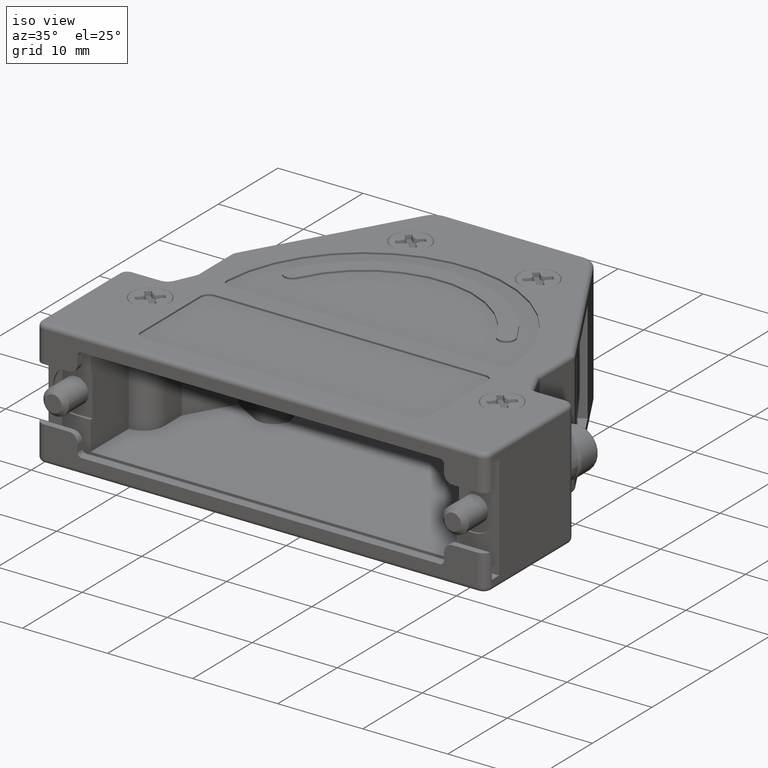
[diagram: clean part render]
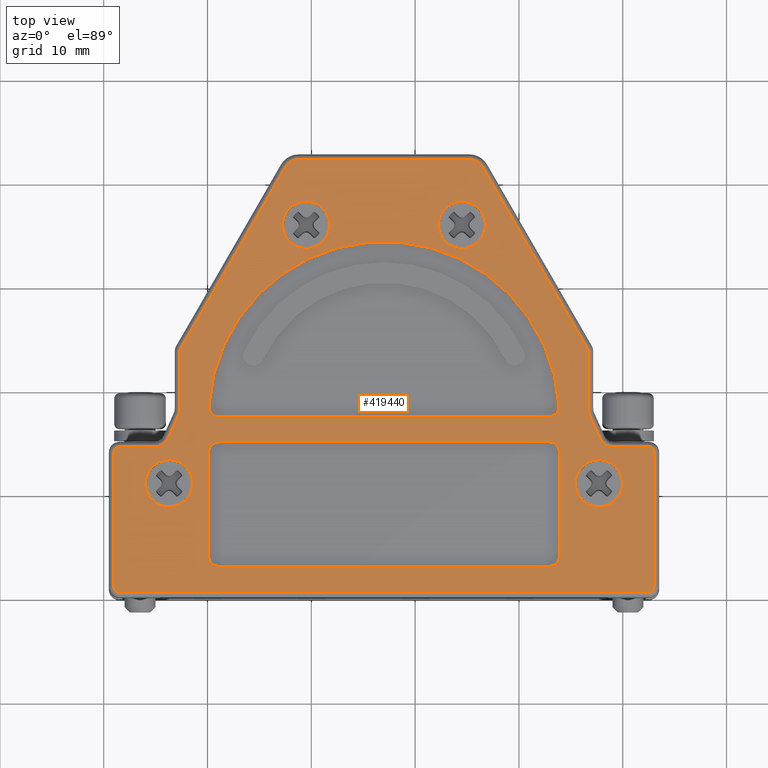
[diagram: tour spotlight — one face highlighted and labeled with its STEP entity id]
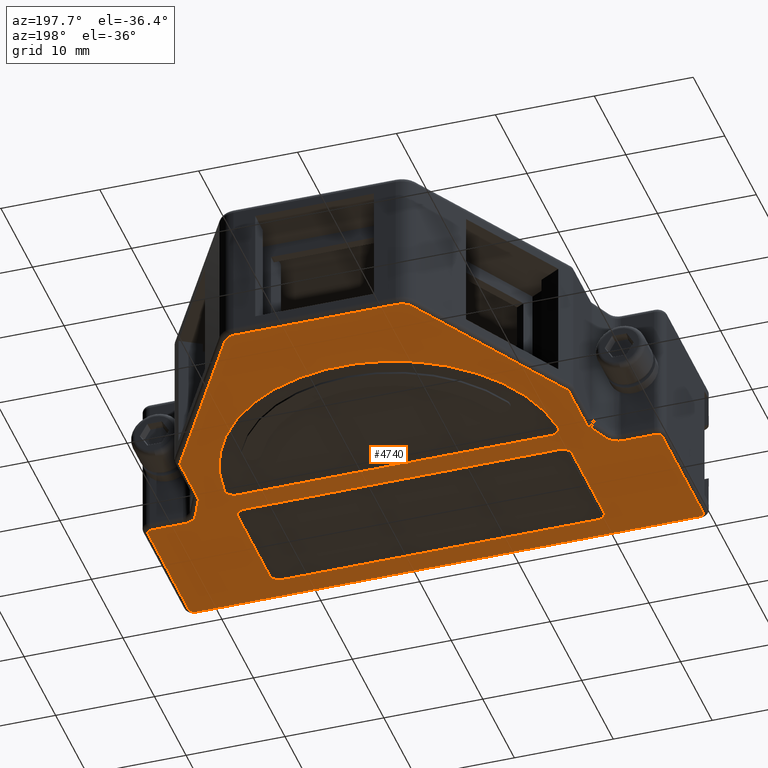
[diagram: tour spotlight — one face highlighted and labeled with its STEP entity id]
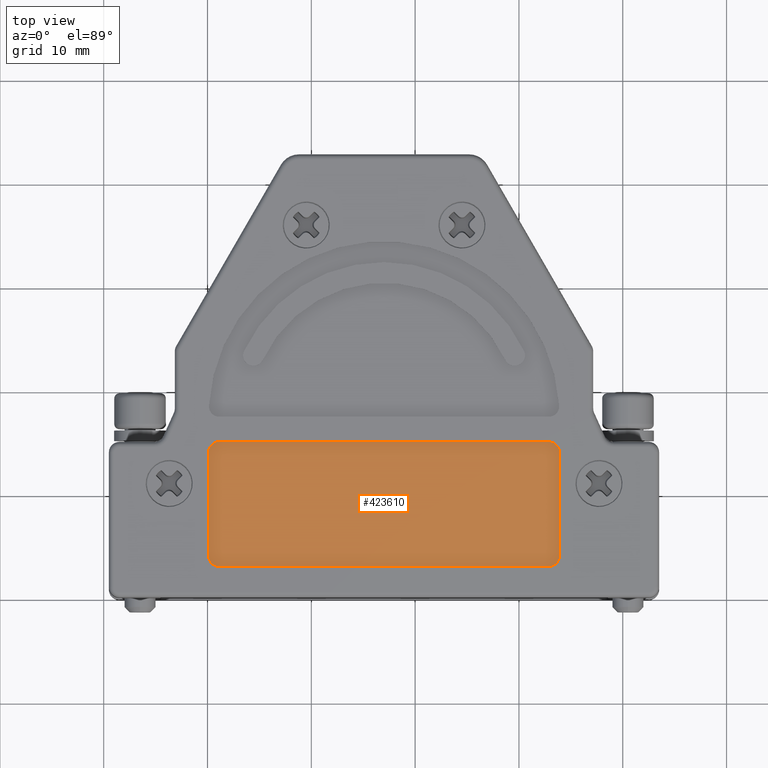
[diagram: tour spotlight — one face highlighted and labeled with its STEP entity id]
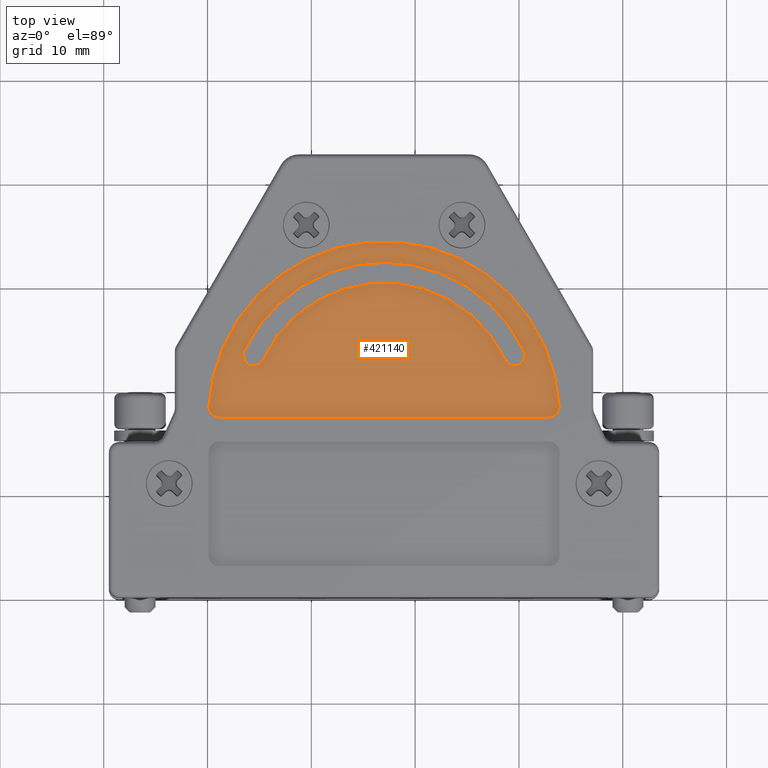
[diagram: tour spotlight — one face highlighted and labeled with its STEP entity id]
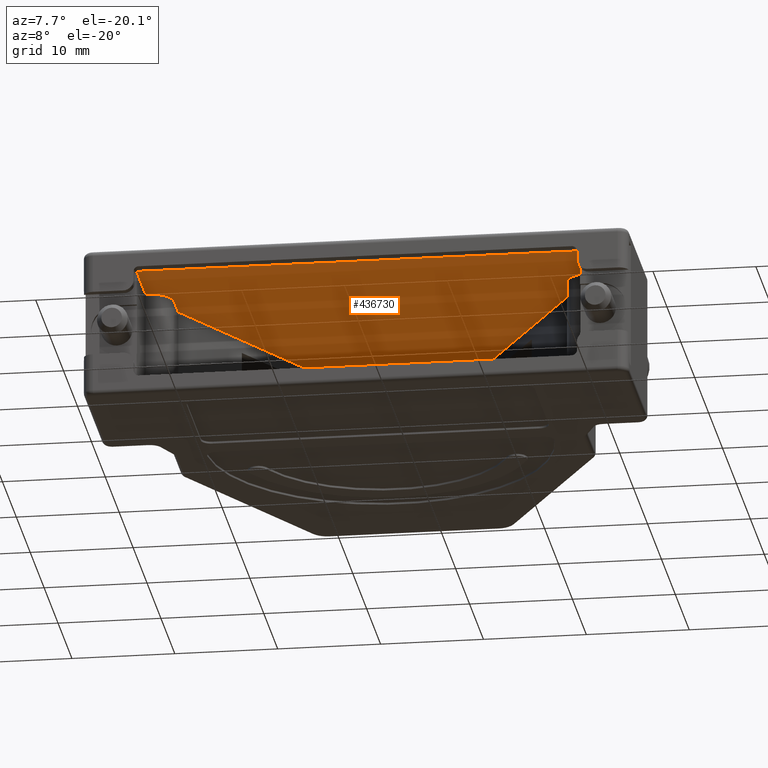
[diagram: tour spotlight — one face highlighted and labeled with its STEP entity id]
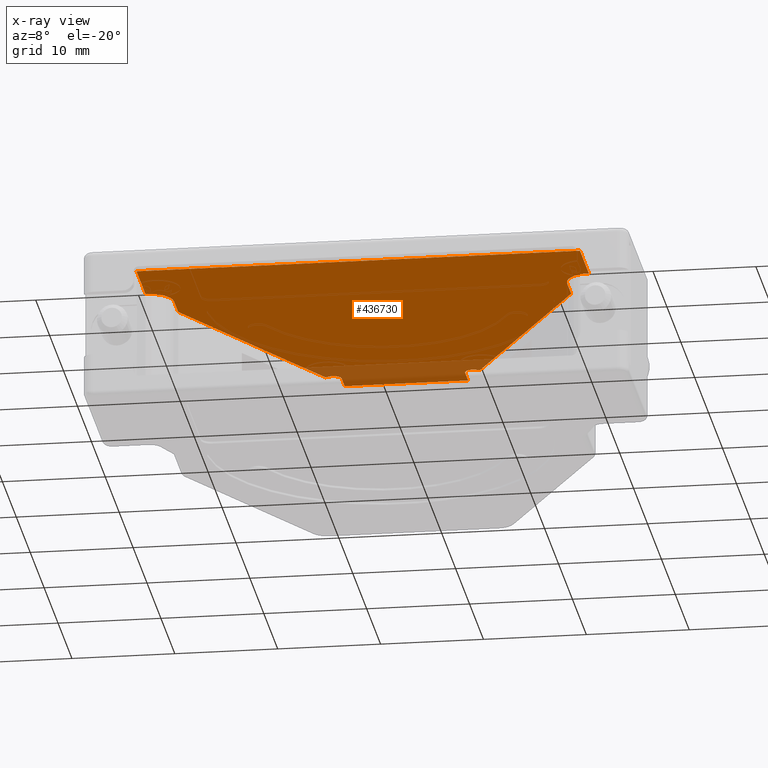
[diagram: x-ray of the same camera — body ghosted, this tour face saturated]
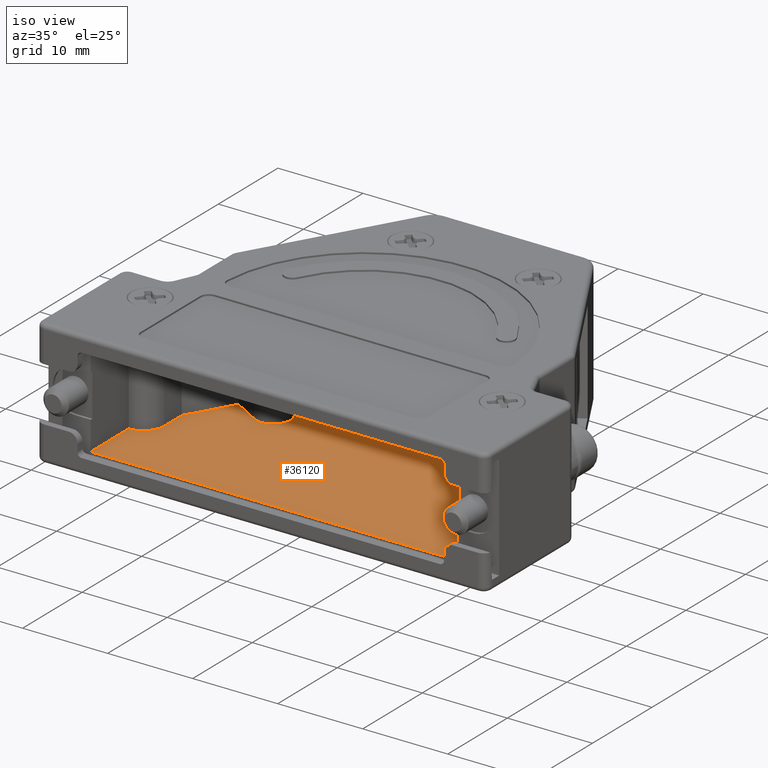
[diagram: tour spotlight — one face highlighted and labeled with its STEP entity id]
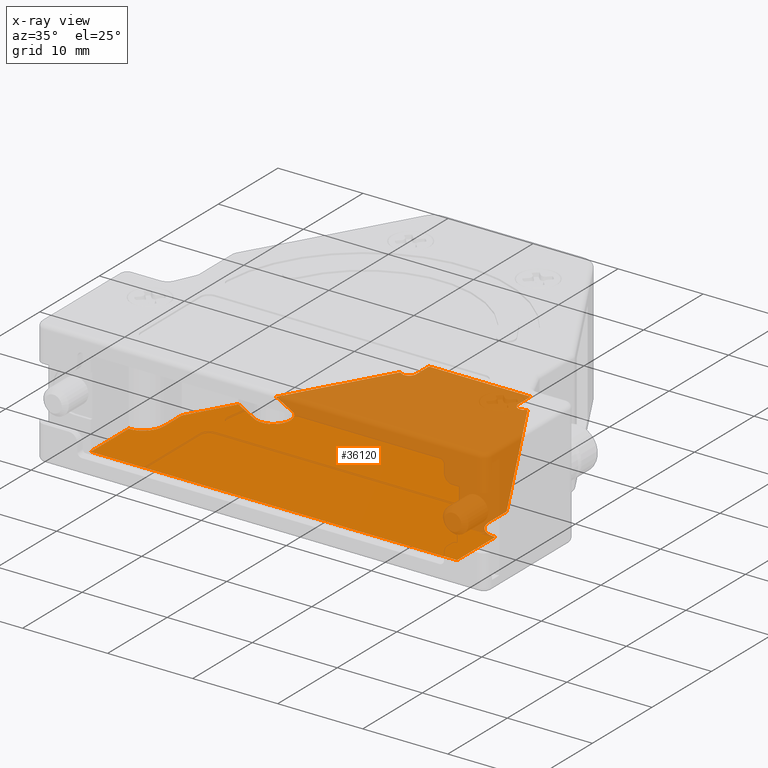
[diagram: x-ray of the same camera — body ghosted, this tour face saturated]
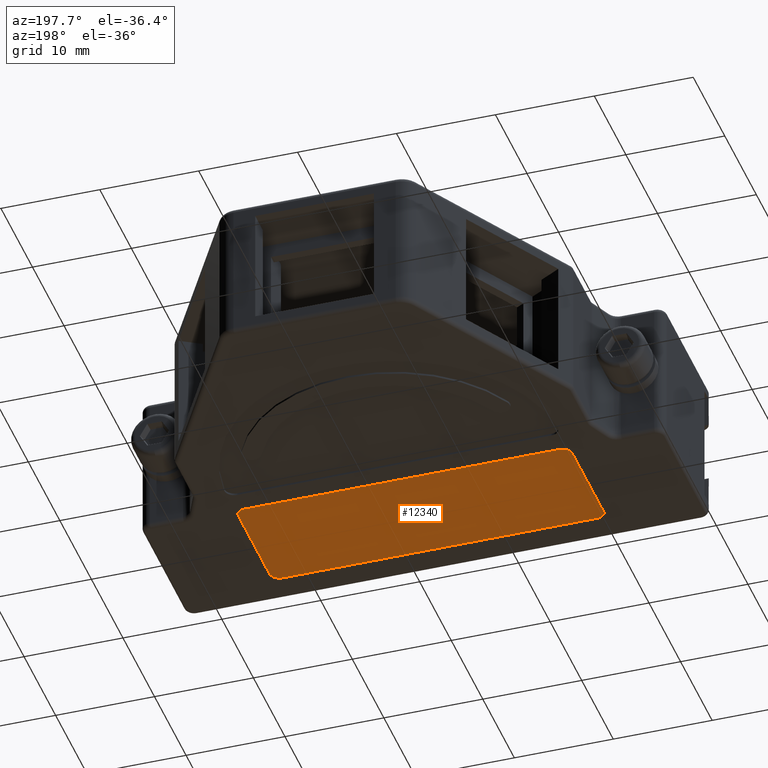
[diagram: tour spotlight — one face highlighted and labeled with its STEP entity id]
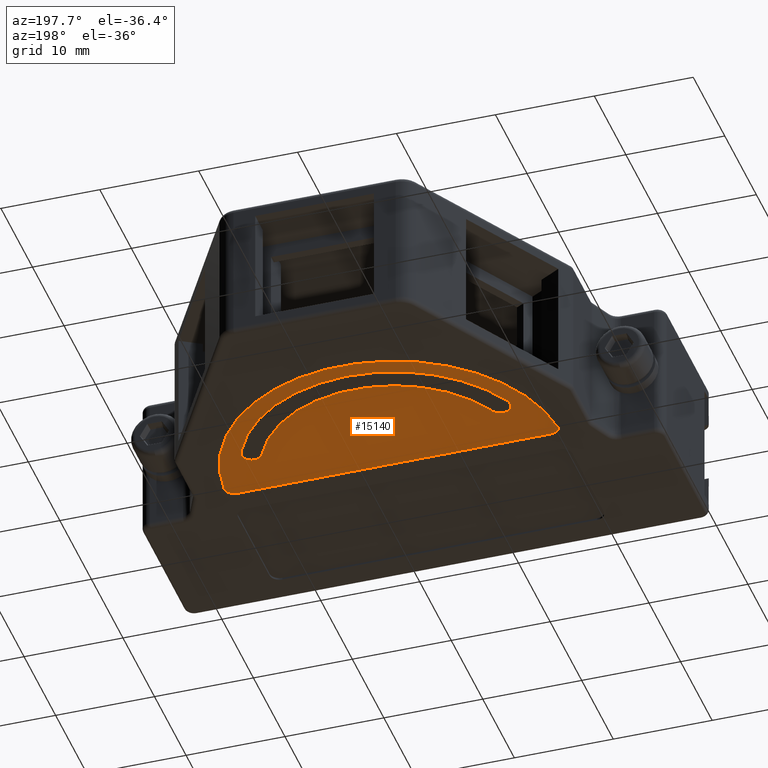
[diagram: tour spotlight — one face highlighted and labeled with its STEP entity id]
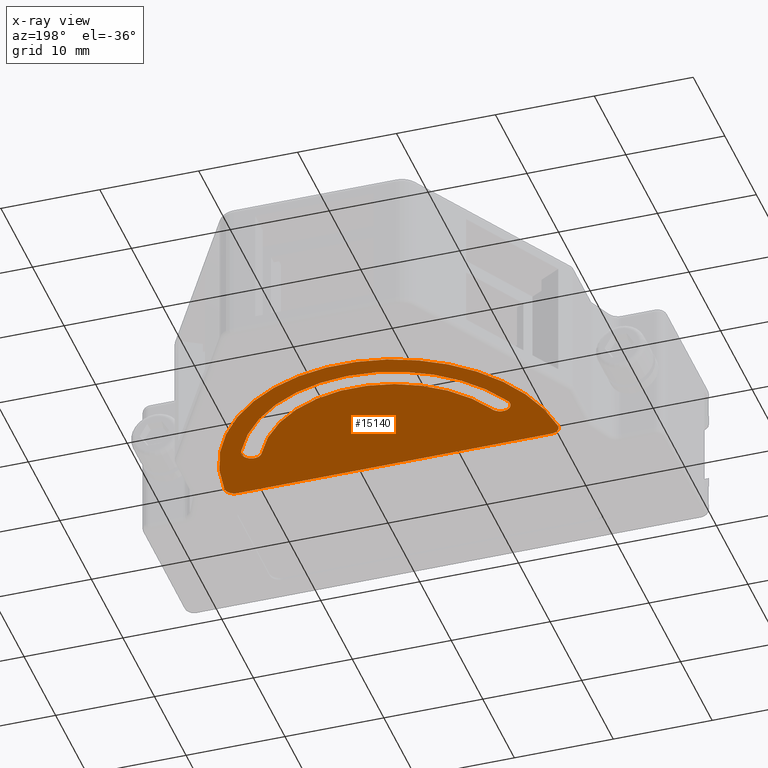
[diagram: x-ray of the same camera — body ghosted, this tour face saturated]
A machine part: a face-by-face anatomy tour. The part has 722 B-rep faces; the first image is the clean iso view, then the 8 largest visible faces are spotlighted one at a time (largest first), each with its STEP entity span.

Face 1 — top view, entity #419440. In plain terms, the highlighted planar face has unit normal (0, 0, -1).
Definition (entity closure, byte-faithful):
#60500=CARTESIAN_POINT('',(30.4169872981078,23.3320508075689,-20.));
#60510=VERTEX_POINT('',#60500);
#60540=CARTESIAN_POINT('',(30.85,23.0820508075689,-20.));
#60550=DIRECTION('',(0.,0.,-1.));
#60560=DIRECTION('',(-1.,0.,0.));
#60570=AXIS2_PLACEMENT_3D('',#60540,#60550,#60560);
#60580=CIRCLE('',#60570,0.5);
#60590=CARTESIAN_POINT('',(30.35,23.0820508075689,-20.));
#60600=VERTEX_POINT('',#60590);
#60610=EDGE_CURVE('',#60600,#60510,#60580,.T.);
#138470=CARTESIAN_POINT('',(44.1086679271994,36.8586679271994,-20.));
#138480=VERTEX_POINT('',#138470);
#138510=CARTESIAN_POINT('',(42.5,35.25,-20.));
#138520=DIRECTION('',(0.,0.,1.));
#138530=DIRECTION('',(0.707106781186547,0.707106781186548,0.));
#138540=AXIS2_PLACEMENT_3D('',#138510,#138520,#138530);
#138550=CIRCLE('',#138540,2.275);
#138560=CARTESIAN_POINT('',(40.8913320728006,33.6413320728006,-20.));
#138570=VERTEX_POINT('',#138560);
#138580=EDGE_CURVE('',#138570,#138480,#138550,.T.);
#139940=CARTESIAN_POINT('',(30.9086679271994,11.9586679271994,-20.));
#139950=VERTEX_POINT('',#139940);
#139980=CARTESIAN_POINT('',(29.3,10.35,-20.));
#139990=DIRECTION('',(0.,0.,1.));
#140000=DIRECTION('',(0.707106781186547,0.707106781186548,0.));
#140010=AXIS2_PLACEMENT_3D('',#139980,#139990,#140000);
#140020=CIRCLE('',#140010,2.275);
#140030=CARTESIAN_POINT('',(27.6913320728006,8.74133207280061,-20.));
#140040=VERTEX_POINT('',#140030);
#140050=EDGE_CURVE('',#140040,#139950,#140020,.T.);
#140430=CARTESIAN_POINT('',(59.1086679271994,36.8586679271994,-20.));
#140440=VERTEX_POINT('',#140430);
#140470=CARTESIAN_POINT('',(57.5,35.25,-20.));
#140480=DIRECTION('',(0.,0.,1.));
#140490=DIRECTION('',(0.707106781186547,0.707106781186548,0.));
#140500=AXIS2_PLACEMENT_3D('',#140470,#140480,#140490);
#140510=CIRCLE('',#140500,2.275);
#140520=CARTESIAN_POINT('',(55.8913320728006,33.6413320728006,-20.));
#140530=VERTEX_POINT('',#140520);
#140540=EDGE_CURVE('',#140530,#140440,#140510,.T.);
#140920=CARTESIAN_POINT('',(72.3086679271994,11.9586679271994,-20.));
#140930=VERTEX_POINT('',#140920);
#140960=CARTESIAN_POINT('',(70.7,10.35,-20.));
#140970=DIRECTION('',(0.,0.,1.));
#140980=DIRECTION('',(0.707106781186547,0.707106781186548,0.));
#140990=AXIS2_PLACEMENT_3D('',#140960,#140970,#140980);
#141000=CIRCLE('',#140990,2.275);
#141010=CARTESIAN_POINT('',(69.0913320728006,8.74133207280061,-20.));
#141020=VERTEX_POINT('',#141010);
#141030=EDGE_CURVE('',#141020,#140930,#141000,.T.);
#412190=EDGE_CURVE('',#140930,#141020,#141000,.T.);
#412780=EDGE_CURVE('',#140440,#140530,#140510,.T.);
#413120=EDGE_CURVE('',#139950,#140040,#140020,.T.);
#414160=EDGE_CURVE('',#138480,#138570,#138550,.T.);
#416200=CARTESIAN_POINT('',(50.,4.35,-20.));
#416210=DIRECTION('',(0.,0.,-1.));
#416220=DIRECTION('',(-1.,0.,0.));
#416230=AXIS2_PLACEMENT_3D('',#416200,#416210,#416220);
#416240=PLANE('',#416230);
#416250=CARTESIAN_POINT('',(0.,2.35,-20.));
#416260=DIRECTION('',(1.,0.,0.));
#416270=VECTOR('',#416260,1.);
#416280=LINE('',#416250,#416270);
#416290=CARTESIAN_POINT('',(34.1,2.35,-20.));
#416300=VERTEX_POINT('',#416290);
#416310=CARTESIAN_POINT('',(65.9,2.35,-20.));
#416320=VERTEX_POINT('',#416310);
#416330=EDGE_CURVE('',#416300,#416320,#416280,.T.);
#416340=ORIENTED_EDGE('',*,*,#416330,.F.);
#416350=CARTESIAN_POINT('',(65.9,3.35,-20.));
#416360=DIRECTION('',(0.,0.,-1.));
#416370=DIRECTION('',(-1.,0.,0.));
#416380=AXIS2_PLACEMENT_3D('',#416350,#416360,#416370);
#416390=CIRCLE('',#416380,1.);
#416400=CARTESIAN_POINT('',(66.9,3.35,-20.));
#416410=VERTEX_POINT('',#416400);
#416420=EDGE_CURVE('',#416410,#416320,#416390,.T.);
#416430=ORIENTED_EDGE('',*,*,#416420,.T.);
#416440=CARTESIAN_POINT('',(66.9,0.,-20.));
#416450=DIRECTION('',(0.,1.,0.));
#416460=VECTOR('',#416450,1.);
#416470=LINE('',#416440,#416460);
#416480=CARTESIAN_POINT('',(66.9,13.35,-20.));
#416490=VERTEX_POINT('',#416480);
#416500=EDGE_CURVE('',#416410,#416490,#416470,.T.);
#416510=ORIENTED_EDGE('',*,*,#416500,.F.);
#416520=CARTESIAN_POINT('',(65.9,13.35,-20.));
#416530=DIRECTION('',(0.,0.,1.));
#416540=DIRECTION('',(1.,0.,0.));
#416550=AXIS2_PLACEMENT_3D('',#416520,#416530,#416540);
#416560=CIRCLE('',#416550,1.);
#416570=CARTESIAN_POINT('',(65.9,14.35,-20.));
#416580=VERTEX_POINT('',#416570);
#416590=EDGE_CURVE('',#416490,#416580,#416560,.T.);
#416600=ORIENTED_EDGE('',*,*,#416590,.F.);
#416610=CARTESIAN_POINT('',(0.,14.35,-20.));
#416620=DIRECTION('',(-1.,0.,0.));
#416630=VECTOR('',#416620,1.);
#416640=LINE('',#416610,#416630);
#416650=CARTESIAN_POINT('',(34.1,14.35,-20.));
#416660=VERTEX_POINT('',#416650);
#416670=EDGE_CURVE('',#416580,#416660,#416640,.T.);
#416680=ORIENTED_EDGE('',*,*,#416670,.F.);
#416690=CARTESIAN_POINT('',(34.1,13.35,-20.));
#416700=DIRECTION('',(0.,0.,-1.));
#416710=DIRECTION('',(-1.,0.,0.));
#416720=AXIS2_PLACEMENT_3D('',#416690,#416700,#416710);
#416730=CIRCLE('',#416720,1.);
#416740=CARTESIAN_POINT('',(33.1,13.35,-20.));
#416750=VERTEX_POINT('',#416740);
#416760=EDGE_CURVE('',#416750,#416660,#416730,.T.);
#416770=ORIENTED_EDGE('',*,*,#416760,.T.);
#416780=CARTESIAN_POINT('',(33.1,0.,-20.));
#416790=DIRECTION('',(0.,-1.,0.));
#416800=VECTOR('',#416790,1.);
#416810=LINE('',#416780,#416800);
#416820=CARTESIAN_POINT('',(33.1,3.35,-20.));
#416830=VERTEX_POINT('',#416820);
#416840=EDGE_CURVE('',#416750,#416830,#416810,.T.);
#416850=ORIENTED_EDGE('',*,*,#416840,.F.);
#416860=CARTESIAN_POINT('',(34.1,3.35,-20.));
#416870=DIRECTION('',(0.,0.,-1.));
#416880=DIRECTION('',(-1.,0.,0.));
#416890=AXIS2_PLACEMENT_3D('',#416860,#416870,#416880);
#416900=CIRCLE('',#416890,1.);
#416910=EDGE_CURVE('',#416300,#416830,#416900,.T.);
#416920=ORIENTED_EDGE('',*,*,#416910,.T.);
#416930=EDGE_LOOP('',(#416920,#416850,#416770,#416680,#416600,#416510,
#416430,#416340));
#416940=FACE_BOUND('',#416930,.T.);
#416950=ORIENTED_EDGE('',*,*,#413120,.F.);
#416960=ORIENTED_EDGE('',*,*,#140050,.F.);
#416970=EDGE_LOOP('',(#416960,#416950));
#416980=FACE_BOUND('',#416970,.T.);
#416990=ORIENTED_EDGE('',*,*,#414160,.F.);
#417000=ORIENTED_EDGE('',*,*,#138580,.F.);
#417010=EDGE_LOOP('',(#417000,#416990));
#417020=FACE_BOUND('',#417010,.T.);
#417030=ORIENTED_EDGE('',*,*,#412780,.F.);
#417040=ORIENTED_EDGE('',*,*,#140540,.F.);
#417050=EDGE_LOOP('',(#417040,#417030));
#417060=FACE_BOUND('',#417050,.T.);
#417070=ORIENTED_EDGE('',*,*,#412190,.F.);
#417080=ORIENTED_EDGE('',*,*,#141030,.F.);
#417090=EDGE_LOOP('',(#417080,#417070));
#417100=FACE_BOUND('',#417090,.T.);
#417110=CARTESIAN_POINT('',(0.,16.75,-20.));
#417120=DIRECTION('',(1.,0.,0.));
#417130=VECTOR('',#417120,1.);
#417140=LINE('',#417110,#417130);
#417150=CARTESIAN_POINT('',(34.1314776995462,16.75,-20.));
#417160=VERTEX_POINT('',#417150);
#417170=CARTESIAN_POINT('',(65.8685223004538,16.75,-20.));
#417180=VERTEX_POINT('',#417170);
#417190=EDGE_CURVE('',#417160,#417180,#417140,.T.);
#417200=ORIENTED_EDGE('',*,*,#417190,.F.);
#417210=CARTESIAN_POINT('',(65.8685223004538,17.75,-20.));
#417220=DIRECTION('',(0.,0.,-1.));
#417230=DIRECTION('',(-1.,0.,0.));
#417240=AXIS2_PLACEMENT_3D('',#417210,#417220,#417230);
#417250=CIRCLE('',#417240,1.);
#417260=CARTESIAN_POINT('',(66.8665425709226,17.812893081761,-20.));
#417270=VERTEX_POINT('',#417260);
#417280=EDGE_CURVE('',#417270,#417180,#417250,.T.);
#417290=ORIENTED_EDGE('',*,*,#417280,.T.);
#417300=CARTESIAN_POINT('',(50.,16.75,-20.));
#417310=DIRECTION('',(0.,0.,-1.));
#417320=DIRECTION('',(-1.,0.,0.));
#417330=AXIS2_PLACEMENT_3D('',#417300,#417310,#417320);
#417340=CIRCLE('',#417330,16.9);
#417350=CARTESIAN_POINT('',(33.1334574290774,17.812893081761,-20.));
#417360=VERTEX_POINT('',#417350);
#417370=EDGE_CURVE('',#417360,#417270,#417340,.T.);
#417380=ORIENTED_EDGE('',*,*,#417370,.T.);
#417390=CARTESIAN_POINT('',(34.1314776995462,17.75,-20.));
#417400=DIRECTION('',(0.,0.,-1.));
#417410=DIRECTION('',(-1.,0.,0.));
#417420=AXIS2_PLACEMENT_3D('',#417390,#417400,#417410);
#417430=CIRCLE('',#417420,1.);
#417440=EDGE_CURVE('',#417160,#417360,#417430,.T.);
#417450=ORIENTED_EDGE('',*,*,#417440,.T.);
#417460=EDGE_LOOP('',(#417450,#417380,#417290,#417200));
#417470=FACE_BOUND('',#417460,.T.);
#417480=CARTESIAN_POINT('',(75.5,0.350000000000001,-20.));
#417490=DIRECTION('',(0.,0.,-1.));
#417500=DIRECTION('',(-1.,0.,0.));
#417510=AXIS2_PLACEMENT_3D('',#417480,#417490,#417500);
#417520=CIRCLE('',#417510,0.5);
#417530=CARTESIAN_POINT('',(76.,0.350000000000001,-20.));
#417540=VERTEX_POINT('',#417530);
#417550=CARTESIAN_POINT('',(75.5,-0.149999999999999,-20.));
#417560=VERTEX_POINT('',#417550);
#417570=EDGE_CURVE('',#417540,#417560,#417520,.T.);
#417580=ORIENTED_EDGE('',*,*,#417570,.F.);
#417590=CARTESIAN_POINT('',(0.,-0.149999999999999,-20.));
#417600=DIRECTION('',(1.,0.,0.));
#417610=VECTOR('',#417600,1.);
#417620=LINE('',#417590,#417610);
#417630=CARTESIAN_POINT('',(24.5,-0.149999999999999,-20.));
#417640=VERTEX_POINT('',#417630);
#417650=EDGE_CURVE('',#417640,#417560,#417620,.T.);
#417660=ORIENTED_EDGE('',*,*,#417650,.T.);
#417670=CARTESIAN_POINT('',(24.5,0.350000000000001,-20.));
#417680=DIRECTION('',(0.,0.,1.));
#417690=DIRECTION('',(1.,0.,0.));
#417700=AXIS2_PLACEMENT_3D('',#417670,#417680,#417690);
#417710=CIRCLE('',#417700,0.5);
#417720=CARTESIAN_POINT('',(24.,0.350000000000001,-20.));
#417730=VERTEX_POINT('',#417720);
#417740=EDGE_CURVE('',#417730,#417640,#417710,.T.);
#417750=ORIENTED_EDGE('',*,*,#417740,.T.);
#417760=CARTESIAN_POINT('',(24.,0.,-20.));
#417770=DIRECTION('',(0.,-1.,0.));
#417780=VECTOR('',#417770,1.);
#417790=LINE('',#417760,#417780);
#417800=CARTESIAN_POINT('',(24.,13.35,-20.));
#417810=VERTEX_POINT('',#417800);
#417820=EDGE_CURVE('',#417810,#417730,#417790,.T.);
#417830=ORIENTED_EDGE('',*,*,#417820,.T.);
#417840=CARTESIAN_POINT('',(24.5,13.35,-20.));
#417850=DIRECTION('',(0.,0.,-1.));
#417860=DIRECTION('',(-1.,0.,0.));
#417870=AXIS2_PLACEMENT_3D('',#417840,#417850,#417860);
#417880=CIRCLE('',#417870,0.5);
#417890=CARTESIAN_POINT('',(24.5,13.85,-20.));
#417900=VERTEX_POINT('',#417890);
#417910=EDGE_CURVE('',#417810,#417900,#417880,.T.);
#417920=ORIENTED_EDGE('',*,*,#417910,.F.);
#417930=CARTESIAN_POINT('',(0.,13.85,-20.));
#417940=DIRECTION('',(1.,0.,0.));
#417950=VECTOR('',#417940,1.);
#417960=LINE('',#417930,#417950);
#417970=CARTESIAN_POINT('',(27.8534143900269,13.85,-20.));
#417980=VERTEX_POINT('',#417970);
#417990=EDGE_CURVE('',#417900,#417980,#417960,.T.);
#418000=ORIENTED_EDGE('',*,*,#417990,.F.);
#418010=CARTESIAN_POINT('',(27.8534143900269,15.35,-20.));
#418020=DIRECTION('',(0.,0.,1.));
#418030=DIRECTION('',(1.,0.,0.));
#418040=AXIS2_PLACEMENT_3D('',#418010,#418020,#418030);
#418050=CIRCLE('',#418040,1.5);
#418060=CARTESIAN_POINT('',(29.2212966477896,14.7344529840068,-20.));
#418070=VERTEX_POINT('',#418060);
#418080=EDGE_CURVE('',#417980,#418070,#418050,.T.);
#418090=ORIENTED_EDGE('',*,*,#418080,.F.);
#418100=CARTESIAN_POINT('',(22.5907928049865,0.,-20.));
#418110=DIRECTION('',(0.410364677328798,0.911921505175106,0.));
#418120=VECTOR('',#418110,1.);
#418130=LINE('',#418100,#418120);
#418140=CARTESIAN_POINT('',(30.2178822577627,16.9490876728359,-20.));
#418150=VERTEX_POINT('',#418140);
#418160=EDGE_CURVE('',#418070,#418150,#418130,.T.);
#418170=ORIENTED_EDGE('',*,*,#418160,.F.);
#418180=CARTESIAN_POINT('',(28.85,17.564634688829,-20.));
#418190=DIRECTION('',(0.,0.,1.));
#418200=DIRECTION('',(1.,0.,0.));
#418210=AXIS2_PLACEMENT_3D('',#418180,#418190,#418200);
#418220=CIRCLE('',#418210,1.5);
#418230=CARTESIAN_POINT('',(30.35,17.564634688829,-20.));
#418240=VERTEX_POINT('',#418230);
#418250=EDGE_CURVE('',#418150,#418240,#418220,.T.);
#418260=ORIENTED_EDGE('',*,*,#418250,.F.);
#418270=CARTESIAN_POINT('',(30.35,0.,-20.));
#418280=DIRECTION('',(0.,1.,0.));
#418290=VECTOR('',#418280,1.);
#418300=LINE('',#418270,#418290);
#418310=EDGE_CURVE('',#418240,#60600,#418300,.T.);
#418320=ORIENTED_EDGE('',*,*,#418310,.F.);
#418330=ORIENTED_EDGE('',*,*,#60610,.F.);
#418340=CARTESIAN_POINT('',(16.9462214836119,0.,-20.));
#418350=DIRECTION('',(0.5,0.866025403784439,0.));
#418360=VECTOR('',#418350,1.);
#418370=LINE('',#418340,#418360);
#418380=CARTESIAN_POINT('',(40.5021124665486,40.8,-20.));
#418390=VERTEX_POINT('',#418380);
#418400=EDGE_CURVE('',#60510,#418390,#418370,.T.);
#418410=ORIENTED_EDGE('',*,*,#418400,.F.);
#418420=CARTESIAN_POINT('',(41.8011505722253,40.05,-20.));
#418430=DIRECTION('',(0.,0.,-1.));
#418440=DIRECTION('',(-1.,0.,0.));
#418450=AXIS2_PLACEMENT_3D('',#418420,#418430,#418440);
#418460=CIRCLE('',#418450,1.5);
#418470=CARTESIAN_POINT('',(41.8011505722253,41.55,-20.));
#418480=VERTEX_POINT('',#418470);
#418490=EDGE_CURVE('',#418390,#418480,#418460,.T.);
#418500=ORIENTED_EDGE('',*,*,#418490,.F.);
#418510=CARTESIAN_POINT('',(0.,41.55,-20.));
#418520=DIRECTION('',(1.,0.,0.));
#418530=VECTOR('',#418520,1.);
#418540=LINE('',#418510,#418530);
#418550=CARTESIAN_POINT('',(58.1988494277747,41.55,-20.));
#418560=VERTEX_POINT('',#418550);
#418570=EDGE_CURVE('',#418480,#418560,#418540,.T.);
#418580=ORIENTED_EDGE('',*,*,#418570,.F.);
#418590=CARTESIAN_POINT('',(58.1988494277747,40.05,-20.));
#418600=DIRECTION('',(0.,0.,-1.));
#418610=DIRECTION('',(-1.,0.,0.));
#418620=AXIS2_PLACEMENT_3D('',#418590,#418600,#418610);
#418630=CIRCLE('',#418620,1.5);
#418640=CARTESIAN_POINT('',(59.4978875334514,40.8,-20.));
#418650=VERTEX_POINT('',#418640);
#418660=EDGE_CURVE('',#418560,#418650,#418630,.T.);
#418670=ORIENTED_EDGE('',*,*,#418660,.F.);
#418680=CARTESIAN_POINT('',(83.0537785163881,0.,-20.));
#418690=DIRECTION('',(0.5,-0.866025403784439,0.));
#418700=VECTOR('',#418690,1.);
#418710=LINE('',#418680,#418700);
#418720=CARTESIAN_POINT('',(69.5830127018922,23.3320508075689,-20.));
#418730=VERTEX_POINT('',#418720);
#418740=EDGE_CURVE('',#418650,#418730,#418710,.T.);
#418750=ORIENTED_EDGE('',*,*,#418740,.F.);
#418760=CARTESIAN_POINT('',(69.15,23.0820508075689,-20.));
#418770=DIRECTION('',(0.,0.,-1.));
#418780=DIRECTION('',(-1.,0.,0.));
#418790=AXIS2_PLACEMENT_3D('',#418760,#418770,#418780);
#418800=CIRCLE('',#418790,0.5);
#418810=CARTESIAN_POINT('',(69.65,23.0820508075689,-20.));
#418820=VERTEX_POINT('',#418810);
#418830=EDGE_CURVE('',#418730,#418820,#418800,.T.);
#418840=ORIENTED_EDGE('',*,*,#418830,.F.);
#418850=CARTESIAN_POINT('',(69.65,0.,-20.));
#418860=DIRECTION('',(0.,-1.,0.));
#418870=VECTOR('',#418860,1.);
#418880=LINE('',#418850,#418870);
#418890=CARTESIAN_POINT('',(69.65,17.564634688829,-20.));
#418900=VERTEX_POINT('',#418890);
#418910=EDGE_CURVE('',#418820,#418900,#418880,.T.);
#418920=ORIENTED_EDGE('',*,*,#418910,.F.);
#418930=CARTESIAN_POINT('',(71.15,17.564634688829,-20.));
#418940=DIRECTION('',(0.,0.,1.));
#418950=DIRECTION('',(1.,0.,0.));
#418960=AXIS2_PLACEMENT_3D('',#418930,#418940,#418950);
#418970=CIRCLE('',#418960,1.5);
#418980=CARTESIAN_POINT('',(69.7821177422373,16.9490876728358,-20.));
#418990=VERTEX_POINT('',#418980);
#419000=EDGE_CURVE('',#418900,#418990,#418970,.T.);
#419010=ORIENTED_EDGE('',*,*,#419000,.F.);
#419020=CARTESIAN_POINT('',(77.4092071950135,0.,-20.));
#419030=DIRECTION('',(-0.410364677328798,0.911921505175106,0.));
#419040=VECTOR('',#419030,1.);
#419050=LINE('',#419020,#419040);
#419060=CARTESIAN_POINT('',(70.7787033522104,14.7344529840068,-20.));
#419070=VERTEX_POINT('',#419060);
#419080=EDGE_CURVE('',#419070,#418990,#419050,.T.);
#419090=ORIENTED_EDGE('',*,*,#419080,.T.);
#419100=CARTESIAN_POINT('',(72.1465856099731,15.35,-20.));
#419110=DIRECTION('',(0.,0.,1.));
#419120=DIRECTION('',(1.,0.,0.));
#419130=AXIS2_PLACEMENT_3D('',#419100,#419110,#419120);
#419140=CIRCLE('',#419130,1.5);
#419150=CARTESIAN_POINT('',(72.1465856099731,13.85,-20.));
#419160=VERTEX_POINT('',#419150);
#419170=EDGE_CURVE('',#419070,#419160,#419140,.T.);
#419180=ORIENTED_EDGE('',*,*,#419170,.F.);
#419190=CARTESIAN_POINT('',(0.,13.85,-20.));
#419200=DIRECTION('',(-1.,0.,0.));
#419210=VECTOR('',#419200,1.);
#419220=LINE('',#419190,#419210);
#419230=CARTESIAN_POINT('',(75.5,13.85,-20.));
#419240=VERTEX_POINT('',#419230);
#419250=EDGE_CURVE('',#419240,#419160,#419220,.T.);
#419260=ORIENTED_EDGE('',*,*,#419250,.T.);
#419270=CARTESIAN_POINT('',(75.5,13.35,-20.));
#419280=DIRECTION('',(0.,0.,1.));
#419290=DIRECTION('',(1.,0.,0.));
#419300=AXIS2_PLACEMENT_3D('',#419270,#419280,#419290);
#419310=CIRCLE('',#419300,0.5);
#419320=CARTESIAN_POINT('',(76.,13.35,-20.));
#419330=VERTEX_POINT('',#419320);
#419340=EDGE_CURVE('',#419330,#419240,#419310,.T.);
#419350=ORIENTED_EDGE('',*,*,#419340,.T.);
#419360=CARTESIAN_POINT('',(76.,0.,-20.));
#419370=DIRECTION('',(0.,1.,0.));
#419380=VECTOR('',#419370,1.);
#419390=LINE('',#419360,#419380);
#419400=EDGE_CURVE('',#417540,#419330,#419390,.T.);
#419410=ORIENTED_EDGE('',*,*,#419400,.T.);
#419420=EDGE_LOOP('',(#419410,#419350,#419260,#419180,#419090,#419010,
#418920,#418840,#418750,#418670,#418580,#418500,#418410,#418330,#418320,
#418260,#418170,#418090,#418000,#417920,#417830,#417750,#417660,#417580)
);
#419430=FACE_OUTER_BOUND('',#419420,.T.);
#419440=ADVANCED_FACE('',(#416940,#416980,#417020,#417060,#417100,
#417470,#419430),#416240,.F.);

Face 2 — auxiliary view, entity #4740. In plain terms, the highlighted planar face has unit normal (0, 0, -1).
Definition (entity closure, byte-faithful):
#1560=CARTESIAN_POINT('',(50.,4.35,-34.8));
#1570=DIRECTION('',(0.,0.,-1.));
#1580=DIRECTION('',(-1.,0.,0.));
#1590=AXIS2_PLACEMENT_3D('',#1560,#1570,#1580);
#1600=PLANE('',#1590);
#1610=CARTESIAN_POINT('',(75.5,13.35,-34.8));
#1620=DIRECTION('',(0.,0.,1.));
#1630=DIRECTION('',(1.,0.,0.));
#1640=AXIS2_PLACEMENT_3D('',#1610,#1620,#1630);
#1650=CIRCLE('',#1640,0.5);
#1660=CARTESIAN_POINT('',(76.,13.35,-34.8));
#1670=VERTEX_POINT('',#1660);
#1680=CARTESIAN_POINT('',(75.5,13.85,-34.8));
#1690=VERTEX_POINT('',#1680);
#1700=EDGE_CURVE('',#1670,#1690,#1650,.T.);
#1710=ORIENTED_EDGE('',*,*,#1700,.F.);
#1720=CARTESIAN_POINT('',(0.,13.85,-34.8));
#1730=DIRECTION('',(-1.,0.,0.));
#1740=VECTOR('',#1730,1.);
#1750=LINE('',#1720,#1740);
#1760=CARTESIAN_POINT('',(72.1465856099731,13.85,-34.8));
#1770=VERTEX_POINT('',#1760);
#1780=EDGE_CURVE('',#1690,#1770,#1750,.T.);
#1790=ORIENTED_EDGE('',*,*,#1780,.F.);
#1800=CARTESIAN_POINT('',(72.1465856099731,15.35,-34.8));
#1810=DIRECTION('',(0.,0.,1.));
#1820=DIRECTION('',(1.,0.,0.));
#1830=AXIS2_PLACEMENT_3D('',#1800,#1810,#1820);
#1840=CIRCLE('',#1830,1.5);
#1850=CARTESIAN_POINT('',(70.7787033522104,14.7344529840068,-34.8));
#1860=VERTEX_POINT('',#1850);
#1870=EDGE_CURVE('',#1860,#1770,#1840,.T.);
#1880=ORIENTED_EDGE('',*,*,#1870,.T.);
#1890=CARTESIAN_POINT('',(77.4092071950135,0.,-34.8));
#1900=DIRECTION('',(-0.410364677328798,0.911921505175106,0.));
#1910=VECTOR('',#1900,1.);
#1920=LINE('',#1890,#1910);
#1930=CARTESIAN_POINT('',(69.7821177422374,16.9490876728358,-34.8));
#1940=VERTEX_POINT('',#1930);
#1950=EDGE_CURVE('',#1860,#1940,#1920,.T.);
#1960=ORIENTED_EDGE('',*,*,#1950,.F.);
#1970=CARTESIAN_POINT('',(71.15,17.564634688829,-34.8));
#1980=DIRECTION('',(0.,0.,1.));
#1990=DIRECTION('',(1.,0.,0.));
#2000=AXIS2_PLACEMENT_3D('',#1970,#1980,#1990);
#2010=CIRCLE('',#2000,1.5);
#2020=CARTESIAN_POINT('',(69.65,17.564634688829,-34.8));
#2030=VERTEX_POINT('',#2020);
#2040=EDGE_CURVE('',#2030,#1940,#2010,.T.);
#2050=ORIENTED_EDGE('',*,*,#2040,.T.);
#2060=CARTESIAN_POINT('',(69.65,0.,-34.8));
#2070=DIRECTION('',(0.,-1.,0.));
#2080=VECTOR('',#2070,1.);
#2090=LINE('',#2060,#2080);
#2100=CARTESIAN_POINT('',(69.65,23.0820508075689,-34.8));
#2110=VERTEX_POINT('',#2100);
#2120=EDGE_CURVE('',#2110,#2030,#2090,.T.);
#2130=ORIENTED_EDGE('',*,*,#2120,.T.);
#2140=CARTESIAN_POINT('',(69.15,23.0820508075689,-34.8));
#2150=DIRECTION('',(0.,0.,-1.));
#2160=DIRECTION('',(-1.,0.,0.));
#2170=AXIS2_PLACEMENT_3D('',#2140,#2150,#2160);
#2180=CIRCLE('',#2170,0.5);
#2190=CARTESIAN_POINT('',(69.5830127018922,23.3320508075689,-34.8));
#2200=VERTEX_POINT('',#2190);
#2210=EDGE_CURVE('',#2200,#2110,#2180,.T.);
#2220=ORIENTED_EDGE('',*,*,#2210,.T.);
#2230=CARTESIAN_POINT('',(83.0537785163881,0.,-34.8));
#2240=DIRECTION('',(0.5,-0.866025403784439,0.));
#2250=VECTOR('',#2240,1.);
#2260=LINE('',#2230,#2250);
#2270=CARTESIAN_POINT('',(59.4978875334514,40.8,-34.8));
#2280=VERTEX_POINT('',#2270);
#2290=EDGE_CURVE('',#2280,#2200,#2260,.T.);
#2300=ORIENTED_EDGE('',*,*,#2290,.T.);
#2310=CARTESIAN_POINT('',(58.1988494277747,40.05,-34.8));
#2320=DIRECTION('',(0.,0.,-1.));
#2330=DIRECTION('',(-1.,0.,0.));
#2340=AXIS2_PLACEMENT_3D('',#2310,#2320,#2330);
#2350=CIRCLE('',#2340,1.5);
#2360=CARTESIAN_POINT('',(58.1988494277747,41.55,-34.8));
#2370=VERTEX_POINT('',#2360);
#2380=EDGE_CURVE('',#2370,#2280,#2350,.T.);
#2390=ORIENTED_EDGE('',*,*,#2380,.T.);
#2400=CARTESIAN_POINT('',(0.,41.55,-34.8));
#2410=DIRECTION('',(1.,0.,0.));
#2420=VECTOR('',#2410,1.);
#2430=LINE('',#2400,#2420);
#2440=CARTESIAN_POINT('',(41.8011505722253,41.55,-34.8));
#2450=VERTEX_POINT('',#2440);
#2460=EDGE_CURVE('',#2450,#2370,#2430,.T.);
#2470=ORIENTED_EDGE('',*,*,#2460,.T.);
#2480=CARTESIAN_POINT('',(41.8011505722253,40.05,-34.8));
#2490=DIRECTION('',(0.,0.,-1.));
#2500=DIRECTION('',(-1.,0.,0.));
#2510=AXIS2_PLACEMENT_3D('',#2480,#2490,#2500);
#2520=CIRCLE('',#2510,1.5);
#2530=CARTESIAN_POINT('',(40.5021124665486,40.8,-34.8));
#2540=VERTEX_POINT('',#2530);
#2550=EDGE_CURVE('',#2540,#2450,#2520,.T.);
#2560=ORIENTED_EDGE('',*,*,#2550,.T.);
#2570=CARTESIAN_POINT('',(16.9462214836119,0.,-34.8));
#2580=DIRECTION('',(0.5,0.866025403784439,0.));
#2590=VECTOR('',#2580,1.);
#2600=LINE('',#2570,#2590);
#2610=CARTESIAN_POINT('',(30.4169872981078,23.3320508075689,-34.8));
#2620=VERTEX_POINT('',#2610);
#2630=EDGE_CURVE('',#2620,#2540,#2600,.T.);
#2640=ORIENTED_EDGE('',*,*,#2630,.T.);
#2650=CARTESIAN_POINT('',(30.85,23.0820508075689,-34.8));
#2660=DIRECTION('',(0.,0.,-1.));
#2670=DIRECTION('',(-1.,0.,0.));
#2680=AXIS2_PLACEMENT_3D('',#2650,#2660,#2670);
#2690=CIRCLE('',#2680,0.5);
#2700=CARTESIAN_POINT('',(30.35,23.0820508075689,-34.8));
#2710=VERTEX_POINT('',#2700);
#2720=EDGE_CURVE('',#2710,#2620,#2690,.T.);
#2730=ORIENTED_EDGE('',*,*,#2720,.T.);
#2740=CARTESIAN_POINT('',(30.35,0.,-34.8));
#2750=DIRECTION('',(0.,1.,0.));
#2760=VECTOR('',#2750,1.);
#2770=LINE('',#2740,#2760);
#2780=CARTESIAN_POINT('',(30.35,17.564634688829,-34.8));
#2790=VERTEX_POINT('',#2780);
#2800=EDGE_CURVE('',#2790,#2710,#2770,.T.);
#2810=ORIENTED_EDGE('',*,*,#2800,.T.);
#2820=CARTESIAN_POINT('',(28.85,17.564634688829,-34.8));
#2830=DIRECTION('',(0.,0.,1.));
#2840=DIRECTION('',(1.,0.,0.));
#2850=AXIS2_PLACEMENT_3D('',#2820,#2830,#2840);
#2860=CIRCLE('',#2850,1.5);
#2870=CARTESIAN_POINT('',(30.2178822577627,16.9490876728359,-34.8));
#2880=VERTEX_POINT('',#2870);
#2890=EDGE_CURVE('',#2880,#2790,#2860,.T.);
#2900=ORIENTED_EDGE('',*,*,#2890,.T.);
#2910=CARTESIAN_POINT('',(22.5907928049865,0.,-34.8));
#2920=DIRECTION('',(0.410364677328798,0.911921505175106,0.));
#2930=VECTOR('',#2920,1.);
#2940=LINE('',#2910,#2930);
#2950=CARTESIAN_POINT('',(29.2212966477896,14.7344529840068,-34.8));
#2960=VERTEX_POINT('',#2950);
#2970=EDGE_CURVE('',#2960,#2880,#2940,.T.);
#2980=ORIENTED_EDGE('',*,*,#2970,.T.);
#2990=CARTESIAN_POINT('',(27.8534143900269,15.35,-34.8));
#3000=DIRECTION('',(0.,0.,1.));
#3010=DIRECTION('',(1.,0.,0.));
#3020=AXIS2_PLACEMENT_3D('',#2990,#3000,#3010);
#3030=CIRCLE('',#3020,1.5);
#3040=CARTESIAN_POINT('',(27.8534143900269,13.85,-34.8));
#3050=VERTEX_POINT('',#3040);
#3060=EDGE_CURVE('',#3050,#2960,#3030,.T.);
#3070=ORIENTED_EDGE('',*,*,#3060,.T.);
#3080=CARTESIAN_POINT('',(0.,13.85,-34.8));
#3090=DIRECTION('',(1.,0.,0.));
#3100=VECTOR('',#3090,1.);
#3110=LINE('',#3080,#3100);
#3120=CARTESIAN_POINT('',(24.5,13.85,-34.8));
#3130=VERTEX_POINT('',#3120);
#3140=EDGE_CURVE('',#3130,#3050,#3110,.T.);
#3150=ORIENTED_EDGE('',*,*,#3140,.T.);
#3160=CARTESIAN_POINT('',(24.5,13.35,-34.8));
#3170=DIRECTION('',(0.,0.,-1.));
#3180=DIRECTION('',(-1.,0.,0.));
#3190=AXIS2_PLACEMENT_3D('',#3160,#3170,#3180);
#3200=CIRCLE('',#3190,0.5);
#3210=CARTESIAN_POINT('',(24.,13.35,-34.8));
#3220=VERTEX_POINT('',#3210);
#3230=EDGE_CURVE('',#3220,#3130,#3200,.T.);
#3240=ORIENTED_EDGE('',*,*,#3230,.T.);
#3250=CARTESIAN_POINT('',(24.,0.,-34.8));
#3260=DIRECTION('',(0.,1.,0.));
#3270=VECTOR('',#3260,1.);
#3280=LINE('',#3250,#3270);
#3290=CARTESIAN_POINT('',(24.,0.350000000000001,-34.8));
#3300=VERTEX_POINT('',#3290);
#3310=EDGE_CURVE('',#3300,#3220,#3280,.T.);
#3320=ORIENTED_EDGE('',*,*,#3310,.T.);
#3330=CARTESIAN_POINT('',(24.5,0.350000000000001,-34.8));
#3340=DIRECTION('',(0.,0.,-1.));
#3350=DIRECTION('',(-1.,0.,0.));
#3360=AXIS2_PLACEMENT_3D('',#3330,#3340,#3350);
#3370=CIRCLE('',#3360,0.5);
#3380=CARTESIAN_POINT('',(24.5,-0.149999999999999,-34.8));
#3390=VERTEX_POINT('',#3380);
#3400=EDGE_CURVE('',#3390,#3300,#3370,.T.);
#3410=ORIENTED_EDGE('',*,*,#3400,.T.);
#3420=CARTESIAN_POINT('',(0.,-0.149999999999999,-34.8));
#3430=DIRECTION('',(-1.,0.,0.));
#3440=VECTOR('',#3430,1.);
#3450=LINE('',#3420,#3440);
#3460=CARTESIAN_POINT('',(75.5,-0.149999999999999,-34.8));
#3470=VERTEX_POINT('',#3460);
#3480=EDGE_CURVE('',#3470,#3390,#3450,.T.);
#3490=ORIENTED_EDGE('',*,*,#3480,.T.);
#3500=CARTESIAN_POINT('',(75.5,0.350000000000001,-34.8));
#3510=DIRECTION('',(0.,0.,1.));
#3520=DIRECTION('',(1.,0.,0.));
#3530=AXIS2_PLACEMENT_3D('',#3500,#3510,#3520);
#3540=CIRCLE('',#3530,0.5);
#3550=CARTESIAN_POINT('',(76.,0.350000000000001,-34.8));
#3560=VERTEX_POINT('',#3550);
#3570=EDGE_CURVE('',#3470,#3560,#3540,.T.);
#3580=ORIENTED_EDGE('',*,*,#3570,.F.);
#3590=CARTESIAN_POINT('',(76.,0.,-34.8));
#3600=DIRECTION('',(0.,-1.,0.));
#3610=VECTOR('',#3600,1.);
#3620=LINE('',#3590,#3610);
#3630=EDGE_CURVE('',#1670,#3560,#3620,.T.);
#3640=ORIENTED_EDGE('',*,*,#3630,.T.);
#3650=EDGE_LOOP('',(#3640,#3580,#3490,#3410,#3320,#3240,#3150,#3070,
#2980,#2900,#2810,#2730,#2640,#2560,#2470,#2390,#2300,#2220,#2130,#2050,
#1960,#1880,#1790,#1710));
#3660=FACE_OUTER_BOUND('',#3650,.T.);
#3670=CARTESIAN_POINT('',(65.9,3.35,-34.8));
#3680=DIRECTION('',(0.,0.,-1.));
#3690=DIRECTION('',(-1.,0.,0.));
#3700=AXIS2_PLACEMENT_3D('',#3670,#3680,#3690);
#3710=CIRCLE('',#3700,1.);
#3720=CARTESIAN_POINT('',(66.9,3.35,-34.8));
#3730=VERTEX_POINT('',#3720);
#3740=CARTESIAN_POINT('',(65.9,2.35,-34.8));
#3750=VERTEX_POINT('',#3740);
#3760=EDGE_CURVE('',#3730,#3750,#3710,.T.);
#3770=ORIENTED_EDGE('',*,*,#3760,.F.);
#3780=CARTESIAN_POINT('',(0.,2.35,-34.8));
#3790=DIRECTION('',(1.,0.,0.));
#3800=VECTOR('',#3790,1.);
#3810=LINE('',#3780,#3800);
#3820=CARTESIAN_POINT('',(34.1,2.35,-34.8));
#3830=VERTEX_POINT('',#3820);
#3840=EDGE_CURVE('',#3830,#3750,#3810,.T.);
#3850=ORIENTED_EDGE('',*,*,#3840,.T.);
#3860=CARTESIAN_POINT('',(34.1,3.35,-34.8));
#3870=DIRECTION('',(0.,0.,-1.));
#3880=DIRECTION('',(-1.,0.,0.));
#3890=AXIS2_PLACEMENT_3D('',#3860,#3870,#3880);
#3900=CIRCLE('',#3890,1.);
#3910=CARTESIAN_POINT('',(33.1,3.35,-34.8));
#3920=VERTEX_POINT('',#3910);
#3930=EDGE_CURVE('',#3830,#3920,#3900,.T.);
#3940=ORIENTED_EDGE('',*,*,#3930,.F.);
#3950=CARTESIAN_POINT('',(33.1,0.,-34.8));
#3960=DIRECTION('',(0.,-1.,0.));
#3970=VECTOR('',#3960,1.);
#3980=LINE('',#3950,#3970);
#3990=CARTESIAN_POINT('',(33.1,13.35,-34.8));
#4000=VERTEX_POINT('',#3990);
#4010=EDGE_CURVE('',#4000,#3920,#3980,.T.);
#4020=ORIENTED_EDGE('',*,*,#4010,.T.);
#4030=CARTESIAN_POINT('',(34.1,13.35,-34.8));
#4040=DIRECTION('',(0.,0.,-1.));
#4050=DIRECTION('',(-1.,0.,0.));
#4060=AXIS2_PLACEMENT_3D('',#4030,#4040,#4050);
#4070=CIRCLE('',#4060,1.);
#4080=CARTESIAN_POINT('',(34.1,14.35,-34.8));
#4090=VERTEX_POINT('',#4080);
#4100=EDGE_CURVE('',#4000,#4090,#4070,.T.);
#4110=ORIENTED_EDGE('',*,*,#4100,.F.);
#4120=CARTESIAN_POINT('',(0.,14.35,-34.8));
#4130=DIRECTION('',(-1.,0.,0.));
#4140=VECTOR('',#4130,1.);
#4150=LINE('',#4120,#4140);
#4160=CARTESIAN_POINT('',(65.9,14.35,-34.8));
#4170=VERTEX_POINT('',#4160);
#4180=EDGE_CURVE('',#4170,#4090,#4150,.T.);
#4190=ORIENTED_EDGE('',*,*,#4180,.T.);
#4200=CARTESIAN_POINT('',(65.9,13.35,-34.8));
#4210=DIRECTION('',(0.,0.,1.));
#4220=DIRECTION('',(1.,0.,0.));
#4230=AXIS2_PLACEMENT_3D('',#4200,#4210,#4220);
#4240=CIRCLE('',#4230,1.);
#4250=CARTESIAN_POINT('',(66.9,13.35,-34.8));
#4260=VERTEX_POINT('',#4250);
#4270=EDGE_CURVE('',#4260,#4170,#4240,.T.);
#4280=ORIENTED_EDGE('',*,*,#4270,.T.);
#4290=CARTESIAN_POINT('',(66.9,0.,-34.8));
#4300=DIRECTION('',(0.,1.,0.));
#4310=VECTOR('',#4300,1.);
#4320=LINE('',#4290,#4310);
#4330=EDGE_CURVE('',#3730,#4260,#4320,.T.);
#4340=ORIENTED_EDGE('',*,*,#4330,.T.);
#4350=EDGE_LOOP('',(#4340,#4280,#4190,#4110,#4020,#3940,#3850,#3770));
#4360=FACE_BOUND('',#4350,.T.);
#4370=CARTESIAN_POINT('',(65.8685223004538,17.75,-34.8));
#4380=DIRECTION('',(0.,0.,-1.));
#4390=DIRECTION('',(-1.,0.,0.));
#4400=AXIS2_PLACEMENT_3D('',#4370,#4380,#4390);
#4410=CIRCLE('',#4400,1.);
#4420=CARTESIAN_POINT('',(66.8665425709226,17.812893081761,-34.8));
#4430=VERTEX_POINT('',#4420);
#4440=CARTESIAN_POINT('',(65.8685223004538,16.75,-34.8));
#4450=VERTEX_POINT('',#4440);
#4460=EDGE_CURVE('',#4430,#4450,#4410,.T.);
#4470=ORIENTED_EDGE('',*,*,#4460,.F.);
#4480=CARTESIAN_POINT('',(0.,16.75,-34.8));
#4490=DIRECTION('',(1.,0.,0.));
#4500=VECTOR('',#4490,1.);
#4510=LINE('',#4480,#4500);
#4520=CARTESIAN_POINT('',(34.1314776995462,16.75,-34.8));
#4530=VERTEX_POINT('',#4520);
#4540=EDGE_CURVE('',#4530,#4450,#4510,.T.);
#4550=ORIENTED_EDGE('',*,*,#4540,.T.);
#4560=CARTESIAN_POINT('',(34.1314776995462,17.75,-34.8));
#4570=DIRECTION('',(0.,0.,-1.));
#4580=DIRECTION('',(-1.,0.,0.));
#4590=AXIS2_PLACEMENT_3D('',#4560,#4570,#4580);
#4600=CIRCLE('',#4590,1.);
#4610=CARTESIAN_POINT('',(33.1334574290774,17.812893081761,-34.8));
#4620=VERTEX_POINT('',#4610);
#4630=EDGE_CURVE('',#4530,#4620,#4600,.T.);
#4640=ORIENTED_EDGE('',*,*,#4630,.F.);
#4650=CARTESIAN_POINT('',(50.,16.75,-34.8));
#4660=DIRECTION('',(0.,0.,-1.));
#4670=DIRECTION('',(-1.,0.,0.));
#4680=AXIS2_PLACEMENT_3D('',#4650,#4660,#4670);
#4690=CIRCLE('',#4680,16.9);
#4700=EDGE_CURVE('',#4620,#4430,#4690,.T.);
#4710=ORIENTED_EDGE('',*,*,#4700,.F.);
#4720=EDGE_LOOP('',(#4710,#4640,#4550,#4470));
#4730=FACE_BOUND('',#4720,.T.);
#4740=ADVANCED_FACE('',(#3660,#4360,#4730),#1600,.T.);

Face 3 — top view, entity #423610. In plain terms, the highlighted planar face has unit normal (0, 0, -1).
Definition (entity closure, byte-faithful):
#422860=CARTESIAN_POINT('',(50.,20.7,-20.2));
#422870=DIRECTION('',(0.,0.,-1.));
#422880=DIRECTION('',(-1.,0.,0.));
#422890=AXIS2_PLACEMENT_3D('',#422860,#422870,#422880);
#422900=PLANE('',#422890);
#422910=CARTESIAN_POINT('',(66.9,14.35,-20.2));
#422920=DIRECTION('',(0.,-1.,0.));
#422930=VECTOR('',#422920,1.);
#422940=LINE('',#422910,#422930);
#422950=CARTESIAN_POINT('',(66.9,13.35,-20.2));
#422960=VERTEX_POINT('',#422950);
#422970=CARTESIAN_POINT('',(66.9,3.35,-20.2));
#422980=VERTEX_POINT('',#422970);
#422990=EDGE_CURVE('',#422960,#422980,#422940,.T.);
#423000=ORIENTED_EDGE('',*,*,#422990,.F.);
#423010=CARTESIAN_POINT('',(65.9,3.35,-20.2));
#423020=DIRECTION('',(0.,0.,-1.));
#423030=DIRECTION('',(-1.,0.,0.));
#423040=AXIS2_PLACEMENT_3D('',#423010,#423020,#423030);
#423050=CIRCLE('',#423040,1.);
#423060=CARTESIAN_POINT('',(65.9,2.35,-20.2));
#423070=VERTEX_POINT('',#423060);
#423080=EDGE_CURVE('',#422980,#423070,#423050,.T.);
#423090=ORIENTED_EDGE('',*,*,#423080,.F.);
#423100=CARTESIAN_POINT('',(66.9,2.35,-20.2));
#423110=DIRECTION('',(-1.,0.,0.));
#423120=VECTOR('',#423110,1.);
#423130=LINE('',#423100,#423120);
#423140=CARTESIAN_POINT('',(34.1,2.35,-20.2));
#423150=VERTEX_POINT('',#423140);
#423160=EDGE_CURVE('',#423070,#423150,#423130,.T.);
#423170=ORIENTED_EDGE('',*,*,#423160,.F.);
#423180=CARTESIAN_POINT('',(34.1,3.35,-20.2));
#423190=DIRECTION('',(0.,0.,-1.));
#423200=DIRECTION('',(-1.,0.,0.));
#423210=AXIS2_PLACEMENT_3D('',#423180,#423190,#423200);
#423220=CIRCLE('',#423210,1.);
#423230=CARTESIAN_POINT('',(33.1,3.35,-20.2));
#423240=VERTEX_POINT('',#423230);
#423250=EDGE_CURVE('',#423150,#423240,#423220,.T.);
#423260=ORIENTED_EDGE('',*,*,#423250,.F.);
#423270=CARTESIAN_POINT('',(33.1,2.35,-20.2));
#423280=DIRECTION('',(0.,1.,0.));
#423290=VECTOR('',#423280,1.);
#423300=LINE('',#423270,#423290);
#423310=CARTESIAN_POINT('',(33.1,13.35,-20.2));
#423320=VERTEX_POINT('',#423310);
#423330=EDGE_CURVE('',#423240,#423320,#423300,.T.);
#423340=ORIENTED_EDGE('',*,*,#423330,.F.);
#423350=CARTESIAN_POINT('',(34.1,13.35,-20.2));
#423360=DIRECTION('',(0.,0.,-1.));
#423370=DIRECTION('',(-1.,0.,0.));
#423380=AXIS2_PLACEMENT_3D('',#423350,#423360,#423370);
#423390=CIRCLE('',#423380,1.);
#423400=CARTESIAN_POINT('',(34.1,14.35,-20.2));
#423410=VERTEX_POINT('',#423400);
#423420=EDGE_CURVE('',#423320,#423410,#423390,.T.);
#423430=ORIENTED_EDGE('',*,*,#423420,.F.);
#423440=CARTESIAN_POINT('',(33.1,14.35,-20.2));
#423450=DIRECTION('',(1.,0.,0.));
#423460=VECTOR('',#423450,1.);
#423470=LINE('',#423440,#423460);
#423480=CARTESIAN_POINT('',(65.9,14.35,-20.2));
#423490=VERTEX_POINT('',#423480);
#423500=EDGE_CURVE('',#423410,#423490,#423470,.T.);
#423510=ORIENTED_EDGE('',*,*,#423500,.F.);
#423520=CARTESIAN_POINT('',(65.9,13.35,-20.2));
#423530=DIRECTION('',(0.,0.,1.));
#423540=DIRECTION('',(1.,0.,0.));
#423550=AXIS2_PLACEMENT_3D('',#423520,#423530,#423540);
#423560=CIRCLE('',#423550,1.);
#423570=EDGE_CURVE('',#422960,#423490,#423560,.T.);
#423580=ORIENTED_EDGE('',*,*,#423570,.T.);
#423590=EDGE_LOOP('',(#423580,#423510,#423430,#423340,#423260,#423170,
#423090,#423000));
#423600=FACE_OUTER_BOUND('',#423590,.T.);
#423610=ADVANCED_FACE('',(#423600),#422900,.F.);

Face 4 — top view, entity #421140. In plain terms, the highlighted planar face has unit normal (0, 0, -1).
Definition (entity closure, byte-faithful):
#420160=CARTESIAN_POINT('',(50.,20.7,-20.2));
#420170=DIRECTION('',(0.,0.,-1.));
#420180=DIRECTION('',(-1.,0.,0.));
#420190=AXIS2_PLACEMENT_3D('',#420160,#420170,#420180);
#420200=PLANE('',#420190);
#420210=CARTESIAN_POINT('',(62.576260593216,22.6701072195968,-20.2));
#420220=DIRECTION('',(0.,0.,-1.));
#420230=DIRECTION('',(-1.,0.,0.));
#420240=AXIS2_PLACEMENT_3D('',#420210,#420220,#420230);
#420250=CIRCLE('',#420240,1.);
#420260=CARTESIAN_POINT('',(62.9359728234318,21.7370439251558,-20.2));
#420270=VERTEX_POINT('',#420260);
#420280=CARTESIAN_POINT('',(61.6714936440638,22.2442002253812,-20.2));
#420290=VERTEX_POINT('',#420280);
#420300=EDGE_CURVE('',#420270,#420290,#420250,.T.);
#420310=ORIENTED_EDGE('',*,*,#420300,.T.);
#420320=CARTESIAN_POINT('',(62.576260593216,22.6701072195968,-20.2));
#420330=DIRECTION('',(0.,0.,-1.));
#420340=DIRECTION('',(-1.,0.,0.));
#420350=AXIS2_PLACEMENT_3D('',#420320,#420330,#420340);
#420360=CIRCLE('',#420350,1.);
#420370=CARTESIAN_POINT('',(63.4810275423682,23.0960142138124,-20.2));
#420380=VERTEX_POINT('',#420370);
#420390=EDGE_CURVE('',#420380,#420270,#420360,.T.);
#420400=ORIENTED_EDGE('',*,*,#420390,.T.);
#420410=CARTESIAN_POINT('',(50.,16.75,-20.2));
#420420=DIRECTION('',(0.,0.,-1.));
#420430=DIRECTION('',(-1.,0.,0.));
#420440=AXIS2_PLACEMENT_3D('',#420410,#420420,#420430);
#420450=CIRCLE('',#420440,14.9);
#420460=CARTESIAN_POINT('',(36.5189724576318,23.0960142138124,-20.2));
#420470=VERTEX_POINT('',#420460);
#420480=EDGE_CURVE('',#420470,#420380,#420450,.T.);
#420490=ORIENTED_EDGE('',*,*,#420480,.T.);
#420500=CARTESIAN_POINT('',(37.423739406784,22.6701072195968,-20.2));
#420510=DIRECTION('',(0.,0.,-1.));
#420520=DIRECTION('',(-1.,0.,0.));
#420530=AXIS2_PLACEMENT_3D('',#420500,#420510,#420520);
#420540=CIRCLE('',#420530,1.);
#420550=CARTESIAN_POINT('',(37.0640271765682,21.7370439251558,-20.2));
#420560=VERTEX_POINT('',#420550);
#420570=EDGE_CURVE('',#420560,#420470,#420540,.T.);
#420580=ORIENTED_EDGE('',*,*,#420570,.T.);
#420590=CARTESIAN_POINT('',(37.423739406784,22.6701072195968,-20.2));
#420600=DIRECTION('',(0.,0.,-1.));
#420610=DIRECTION('',(-1.,0.,0.));
#420620=AXIS2_PLACEMENT_3D('',#420590,#420600,#420610);
#420630=CIRCLE('',#420620,1.);
#420640=CARTESIAN_POINT('',(38.3285063559362,22.2442002253812,-20.2));
#420650=VERTEX_POINT('',#420640);
#420660=EDGE_CURVE('',#420650,#420560,#420630,.T.);
#420670=ORIENTED_EDGE('',*,*,#420660,.T.);
#420680=CARTESIAN_POINT('',(50.,16.75,-20.2));
#420690=DIRECTION('',(0.,0.,-1.));
#420700=DIRECTION('',(-1.,0.,0.));
#420710=AXIS2_PLACEMENT_3D('',#420680,#420690,#420700);
#420720=CIRCLE('',#420710,12.9);
#420730=EDGE_CURVE('',#420650,#420290,#420720,.T.);
#420740=ORIENTED_EDGE('',*,*,#420730,.F.);
#420750=EDGE_LOOP('',(#420740,#420670,#420580,#420490,#420400,#420310));
#420760=FACE_BOUND('',#420750,.T.);
#420770=CARTESIAN_POINT('',(66.9,16.75,-20.2));
#420780=DIRECTION('',(-1.,0.,0.));
#420790=VECTOR('',#420780,1.);
#420800=LINE('',#420770,#420790);
#420810=CARTESIAN_POINT('',(65.8685223004538,16.75,-20.2));
#420820=VERTEX_POINT('',#420810);
#420830=CARTESIAN_POINT('',(34.1314776995462,16.75,-20.2));
#420840=VERTEX_POINT('',#420830);
#420850=EDGE_CURVE('',#420820,#420840,#420800,.T.);
#420860=ORIENTED_EDGE('',*,*,#420850,.F.);
#420870=CARTESIAN_POINT('',(34.1314776995462,17.75,-20.2));
#420880=DIRECTION('',(0.,0.,-1.));
#420890=DIRECTION('',(-1.,0.,0.));
#420900=AXIS2_PLACEMENT_3D('',#420870,#420880,#420890);
#420910=CIRCLE('',#420900,1.);
#420920=CARTESIAN_POINT('',(33.1334574290774,17.812893081761,-20.2));
#420930=VERTEX_POINT('',#420920);
#420940=EDGE_CURVE('',#420840,#420930,#420910,.T.);
#420950=ORIENTED_EDGE('',*,*,#420940,.F.);
#420960=CARTESIAN_POINT('',(50.,16.75,-20.2));
#420970=DIRECTION('',(0.,0.,-1.));
#420980=DIRECTION('',(-1.,0.,0.));
#420990=AXIS2_PLACEMENT_3D('',#420960,#420970,#420980);
#421000=CIRCLE('',#420990,16.9);
#421010=CARTESIAN_POINT('',(66.8665425709226,17.812893081761,-20.2));
#421020=VERTEX_POINT('',#421010);
#421030=EDGE_CURVE('',#420930,#421020,#421000,.T.);
#421040=ORIENTED_EDGE('',*,*,#421030,.F.);
#421050=CARTESIAN_POINT('',(65.8685223004538,17.75,-20.2));
#421060=DIRECTION('',(0.,0.,-1.));
#421070=DIRECTION('',(-1.,0.,0.));
#421080=AXIS2_PLACEMENT_3D('',#421050,#421060,#421070);
#421090=CIRCLE('',#421080,1.);
#421100=EDGE_CURVE('',#421020,#420820,#421090,.T.);
#421110=ORIENTED_EDGE('',*,*,#421100,.F.);
#421120=EDGE_LOOP('',(#421110,#421040,#420950,#420860));
#421130=FACE_OUTER_BOUND('',#421120,.T.);
#421140=ADVANCED_FACE('',(#420760,#421130),#420200,.F.);

Face 5 — auxiliary view, entity #436730. An x-ray twin of the same camera follows (body ghosted, this face saturated) — the face is partly hidden behind the body. In plain terms, the highlighted planar face has unit normal (0, 0, 1).
Definition (entity closure, byte-faithful):
#18630=CARTESIAN_POINT('',(28.45,7.94999978864669,-21.5));
#18640=VERTEX_POINT('',#18630);
#19090=CARTESIAN_POINT('',(28.45,1.55,-21.5));
#19100=VERTEX_POINT('',#19090);
#19130=CARTESIAN_POINT('',(28.45,0.,-21.5));
#19140=DIRECTION('',(0.,1.,0.));
#19150=VECTOR('',#19140,1.);
#19160=LINE('',#19130,#19150);
#19170=EDGE_CURVE('',#19100,#18640,#19160,.T.);
#32720=CARTESIAN_POINT('',(69.1,13.3686533479474,-21.5));
#32730=VERTEX_POINT('',#32720);
#32760=CARTESIAN_POINT('',(69.1,0.,-21.5));
#32770=DIRECTION('',(0.,-1.,0.));
#32780=VECTOR('',#32770,1.);
#32790=LINE('',#32760,#32780);
#32800=CARTESIAN_POINT('',(69.1,10.3999997886467,-21.5));
#32810=VERTEX_POINT('',#32800);
#32820=EDGE_CURVE('',#32730,#32810,#32790,.T.);
#34100=CARTESIAN_POINT('',(71.55,0.,-21.5));
#34110=DIRECTION('',(0.,-1.,0.));
#34120=VECTOR('',#34110,1.);
#34130=LINE('',#34100,#34120);
#34140=CARTESIAN_POINT('',(71.55,7.94999978864671,-21.5));
#34150=VERTEX_POINT('',#34140);
#34160=CARTESIAN_POINT('',(71.55,1.55,-21.5));
#34170=VERTEX_POINT('',#34160);
#34180=EDGE_CURVE('',#34150,#34170,#34130,.T.);
#37090=CARTESIAN_POINT('',(28.45,10.3999997886467,-21.5));
#37100=DIRECTION('',(0.,0.,-1.));
#37110=DIRECTION('',(-1.,0.,0.));
#37120=AXIS2_PLACEMENT_3D('',#37090,#37100,#37110);
#37130=CIRCLE('',#37120,2.45);
#37140=CARTESIAN_POINT('',(30.9,10.3999997886467,-21.5));
#37150=VERTEX_POINT('',#37140);
#37160=EDGE_CURVE('',#37150,#18640,#37130,.T.);
#37410=CARTESIAN_POINT('',(30.9,0.,-21.5));
#37420=DIRECTION('',(8.37208244411892E-16,1.,0.));
#37430=VECTOR('',#37420,1.);
#37440=LINE('',#37410,#37430);
#37450=CARTESIAN_POINT('',(30.9,13.3686533479473,-21.5));
#37460=VERTEX_POINT('',#37450);
#37470=EDGE_CURVE('',#37150,#37460,#37440,.T.);
#37710=CARTESIAN_POINT('',(23.2104719043193,0.05,-21.5));
#37720=DIRECTION('',(-0.5,-0.866025403784439,0.));
#37730=VECTOR('',#37720,1.);
#37740=LINE('',#37710,#37730);
#37750=CARTESIAN_POINT('',(42.5095498823282,33.476983597145,-21.5));
#37760=VERTEX_POINT('',#37750);
#37770=EDGE_CURVE('',#37760,#37460,#37740,.T.);
#38260=CARTESIAN_POINT('',(44.,0.,-21.5));
#38270=DIRECTION('',(0.,-1.,0.));
#38280=VECTOR('',#38270,1.);
#38290=LINE('',#38260,#38280);
#38300=CARTESIAN_POINT('',(44.,36.15,-21.5));
#38310=VERTEX_POINT('',#38300);
#38320=CARTESIAN_POINT('',(44.,34.0021124665486,-21.5));
#38330=VERTEX_POINT('',#38320);
#38340=EDGE_CURVE('',#38310,#38330,#38290,.T.);
#39300=CARTESIAN_POINT('',(56.,36.15,-21.5));
#39310=VERTEX_POINT('',#39300);
#39340=CARTESIAN_POINT('',(56.,0.,-21.5));
#39350=DIRECTION('',(0.,1.,0.));
#39360=VECTOR('',#39350,1.);
#39370=LINE('',#39340,#39360);
#39380=CARTESIAN_POINT('',(56.,34.0021124665486,-21.5));
#39390=VERTEX_POINT('',#39380);
#39400=EDGE_CURVE('',#39390,#39310,#39370,.T.);
#39740=CARTESIAN_POINT('',(71.55,10.3999997886467,-21.5));
#39750=DIRECTION('',(0.,0.,-1.));
#39760=DIRECTION('',(-1.,0.,0.));
#39770=AXIS2_PLACEMENT_3D('',#39740,#39750,#39760);
#39780=CIRCLE('',#39770,2.45);
#39790=EDGE_CURVE('',#34150,#32810,#39780,.T.);
#40350=CARTESIAN_POINT('',(57.4904501176718,33.476983597145,-21.5));
#40360=VERTEX_POINT('',#40350);
#40390=CARTESIAN_POINT('',(76.7895280956807,0.0500000000000003,-21.5));
#40400=DIRECTION('',(-0.500000000000001,0.866025403784438,0.));
#40410=VECTOR('',#40400,1.);
#40420=LINE('',#40390,#40410);
#40430=EDGE_CURVE('',#32730,#40360,#40420,.T.);
#43990=CARTESIAN_POINT('',(0.,58.0198836648369,-21.5));
#44000=DIRECTION('',(-0.86602540378444,0.499999999999997,0.));
#44010=VECTOR('',#44000,1.);
#44020=LINE('',#43990,#44010);
#44030=CARTESIAN_POINT('',(42.8,33.3092921435211,-21.5));
#44040=VERTEX_POINT('',#44030);
#44050=EDGE_CURVE('',#44040,#37760,#44020,.T.);
#44280=CARTESIAN_POINT('',(0.,0.2848567458744,-21.5));
#44290=DIRECTION('',(-0.866025403784438,-0.500000000000001,0.));
#44300=VECTOR('',#44290,1.);
#44310=LINE('',#44280,#44300);
#44320=CARTESIAN_POINT('',(57.2,33.309292143521,-21.5));
#44330=VERTEX_POINT('',#44320);
#44340=EDGE_CURVE('',#40360,#44330,#44310,.T.);
#44590=CARTESIAN_POINT('',(43.2,34.0021124665486,-21.5));
#44600=DIRECTION('',(0.,0.,1.));
#44610=DIRECTION('',(1.,0.,0.));
#44620=AXIS2_PLACEMENT_3D('',#44590,#44600,#44610);
#44630=CIRCLE('',#44620,0.8);
#44640=EDGE_CURVE('',#44040,#38330,#44630,.T.);
#44860=CARTESIAN_POINT('',(56.8,34.0021124665486,-21.5));
#44870=DIRECTION('',(0.,0.,-1.));
#44880=DIRECTION('',(-1.,0.,0.));
#44890=AXIS2_PLACEMENT_3D('',#44860,#44870,#44880);
#44900=CIRCLE('',#44890,0.8);
#44910=EDGE_CURVE('',#44330,#39390,#44900,.T.);
#45090=CARTESIAN_POINT('',(0.,1.55,-21.5));
#45100=DIRECTION('',(1.,0.,0.));
#45110=VECTOR('',#45100,1.);
#45120=LINE('',#45090,#45110);
#45130=EDGE_CURVE('',#19100,#34170,#45120,.T.);
#436450=CARTESIAN_POINT('',(50.,17.7,-21.5));
#436460=DIRECTION('',(0.,0.,1.));
#436470=DIRECTION('',(1.,0.,0.));
#436480=AXIS2_PLACEMENT_3D('',#436450,#436460,#436470);
#436490=PLANE('',#436480);
#436500=ORIENTED_EDGE('',*,*,#45130,.F.);
#436510=ORIENTED_EDGE('',*,*,#34180,.T.);
#436520=ORIENTED_EDGE('',*,*,#39790,.F.);
#436530=ORIENTED_EDGE('',*,*,#32820,.T.);
#436540=ORIENTED_EDGE('',*,*,#40430,.F.);
#436550=ORIENTED_EDGE('',*,*,#44340,.F.);
#436560=ORIENTED_EDGE('',*,*,#44910,.F.);
#436570=ORIENTED_EDGE('',*,*,#39400,.F.);
#436580=CARTESIAN_POINT('',(0.,36.15,-21.5));
#436590=DIRECTION('',(1.,0.,0.));
#436600=VECTOR('',#436590,1.);
#436610=LINE('',#436580,#436600);
#436620=EDGE_CURVE('',#38310,#39310,#436610,.T.);
#436630=ORIENTED_EDGE('',*,*,#436620,.T.);
#436640=ORIENTED_EDGE('',*,*,#38340,.F.);
#436650=ORIENTED_EDGE('',*,*,#44640,.T.);
#436660=ORIENTED_EDGE('',*,*,#44050,.F.);
#436670=ORIENTED_EDGE('',*,*,#37770,.F.);
#436680=ORIENTED_EDGE('',*,*,#37470,.T.);
#436690=ORIENTED_EDGE('',*,*,#37160,.F.);
#436700=ORIENTED_EDGE('',*,*,#19170,.T.);
#436710=EDGE_LOOP('',(#436700,#436690,#436680,#436670,#436660,#436650,
#436640,#436630,#436570,#436560,#436550,#436540,#436530,#436520,#436510,
#436500));
#436720=FACE_OUTER_BOUND('',#436710,.T.);
#436730=ADVANCED_FACE('',(#436720),#436490,.F.);

Face 6 — iso view, entity #36120. An x-ray twin of the same camera follows (body ghosted, this face saturated) — the face is partly hidden behind the body. In plain terms, the highlighted planar face has unit normal (0, 0, 1).
Definition (entity closure, byte-faithful):
#740=CARTESIAN_POINT('',(35.9095498823282,22.0454482671904,-33.3));
#750=VERTEX_POINT('',#740);
#780=CARTESIAN_POINT('',(0.,42.7778365582309,-33.3));
#790=DIRECTION('',(0.866025403784439,-0.5,0.));
#800=VECTOR('',#790,1.);
#810=LINE('',#780,#800);
#820=CARTESIAN_POINT('',(39.1138438763306,20.1954482671904,-33.3));
#830=VERTEX_POINT('',#820);
#840=EDGE_CURVE('',#750,#830,#810,.T.);
#18650=CARTESIAN_POINT('',(28.45,7.94999978864669,-33.3));
#18660=VERTEX_POINT('',#18650);
#18690=CARTESIAN_POINT('',(28.45,-0.649999999999999,-33.3));
#18700=DIRECTION('',(0.,1.,0.));
#18710=VECTOR('',#18700,1.);
#18720=LINE('',#18690,#18710);
#18730=CARTESIAN_POINT('',(28.45,1.55,-33.3));
#18740=VERTEX_POINT('',#18730);
#18750=EDGE_CURVE('',#18740,#18660,#18720,.T.);
#32700=CARTESIAN_POINT('',(69.1,13.3686533479474,-33.3));
#32710=VERTEX_POINT('',#32700);
#32880=CARTESIAN_POINT('',(69.1,10.3999997886467,-33.3));
#32890=VERTEX_POINT('',#32880);
#32920=CARTESIAN_POINT('',(69.1,0.,-33.3));
#32930=DIRECTION('',(0.,-1.,0.));
#32940=VECTOR('',#32930,1.);
#32950=LINE('',#32920,#32940);
#32960=EDGE_CURVE('',#32710,#32890,#32950,.T.);
#34520=CARTESIAN_POINT('',(71.55,1.55,-33.3));
#34530=VERTEX_POINT('',#34520);
#34560=CARTESIAN_POINT('',(71.55,8.75192378864671,-33.3));
#34570=DIRECTION('',(0.,-1.,0.));
#34580=VECTOR('',#34570,1.);
#34590=LINE('',#34560,#34580);
#34600=CARTESIAN_POINT('',(71.55,7.94999978864671,-33.3));
#34610=VERTEX_POINT('',#34600);
#34620=EDGE_CURVE('',#34610,#34530,#34590,.T.);
#34800=CARTESIAN_POINT('',(50.,17.7,-33.3));
#34810=DIRECTION('',(0.,0.,1.));
#34820=DIRECTION('',(1.,0.,0.));
#34830=AXIS2_PLACEMENT_3D('',#34800,#34810,#34820);
#34840=PLANE('',#34830);
#34850=ORIENTED_EDGE('',*,*,#32960,.F.);
#34860=CARTESIAN_POINT('',(71.55,10.3999997886467,-33.3));
#34870=DIRECTION('',(0.,0.,-1.));
#34880=DIRECTION('',(-1.,0.,0.));
#34890=AXIS2_PLACEMENT_3D('',#34860,#34870,#34880);
#34900=CIRCLE('',#34890,2.45);
#34910=EDGE_CURVE('',#34610,#32890,#34900,.T.);
#34920=ORIENTED_EDGE('',*,*,#34910,.T.);
#34930=ORIENTED_EDGE('',*,*,#34620,.F.);
#34940=CARTESIAN_POINT('',(0.,1.55,-33.3));
#34950=DIRECTION('',(1.,0.,0.));
#34960=VECTOR('',#34950,1.);
#34970=LINE('',#34940,#34960);
#34980=EDGE_CURVE('',#18740,#34530,#34970,.T.);
#34990=ORIENTED_EDGE('',*,*,#34980,.T.);
#35000=ORIENTED_EDGE('',*,*,#18750,.F.);
#35010=CARTESIAN_POINT('',(28.45,10.3999997886467,-33.3));
#35020=DIRECTION('',(0.,0.,-1.));
#35030=DIRECTION('',(-1.,0.,0.));
#35040=AXIS2_PLACEMENT_3D('',#35010,#35020,#35030);
#35050=CIRCLE('',#35040,2.45);
#35060=CARTESIAN_POINT('',(30.9,10.3999997886467,-33.3));
#35070=VERTEX_POINT('',#35060);
#35080=EDGE_CURVE('',#35070,#18660,#35050,.T.);
#35090=ORIENTED_EDGE('',*,*,#35080,.T.);
#35100=CARTESIAN_POINT('',(30.9,0.,-33.3));
#35110=DIRECTION('',(8.37208244411892E-16,1.,0.));
#35120=VECTOR('',#35110,1.);
#35130=LINE('',#35100,#35120);
#35140=CARTESIAN_POINT('',(30.9,13.3686533479473,-33.3));
#35150=VERTEX_POINT('',#35140);
#35160=EDGE_CURVE('',#35070,#35150,#35130,.T.);
#35170=ORIENTED_EDGE('',*,*,#35160,.F.);
#35180=CARTESIAN_POINT('',(23.2104719043193,0.05,-33.3));
#35190=DIRECTION('',(-0.5,-0.866025403784439,0.));
#35200=VECTOR('',#35190,1.);
#35210=LINE('',#35180,#35200);
#35220=CARTESIAN_POINT('',(33.9095498823282,18.5813466520527,-33.3));
#35230=VERTEX_POINT('',#35220);
#35240=EDGE_CURVE('',#35230,#35150,#35210,.T.);
#35250=ORIENTED_EDGE('',*,*,#35240,.T.);
#35260=CARTESIAN_POINT('',(0.,38.1590344047139,-33.3));
#35270=DIRECTION('',(-0.866025403784439,0.5,0.));
#35280=VECTOR('',#35270,1.);
#35290=LINE('',#35260,#35280);
#35300=CARTESIAN_POINT('',(37.1138438763306,16.7313466520527,-33.3));
#35310=VERTEX_POINT('',#35300);
#35320=EDGE_CURVE('',#35310,#35230,#35290,.T.);
#35330=ORIENTED_EDGE('',*,*,#35320,.T.);
#35340=CARTESIAN_POINT('',(38.1138438763306,18.4633974596216,-33.3));
#35350=DIRECTION('',(0.,0.,1.));
#35360=DIRECTION('',(1.,0.,0.));
#35370=AXIS2_PLACEMENT_3D('',#35340,#35350,#35360);
#35380=CIRCLE('',#35370,2.);
#35390=EDGE_CURVE('',#35310,#830,#35380,.T.);
#35400=ORIENTED_EDGE('',*,*,#35390,.F.);
#35410=ORIENTED_EDGE('',*,*,#840,.T.);
#35420=CARTESIAN_POINT('',(42.5095498823282,33.476983597145,-33.3));
#35430=VERTEX_POINT('',#35420);
#35440=EDGE_CURVE('',#35430,#750,#35210,.T.);
#35450=ORIENTED_EDGE('',*,*,#35440,.T.);
#35460=CARTESIAN_POINT('',(0.,58.0198836648369,-33.3));
#35470=DIRECTION('',(-0.86602540378444,0.499999999999997,0.));
#35480=VECTOR('',#35470,1.);
#35490=LINE('',#35460,#35480);
#35500=CARTESIAN_POINT('',(42.8,33.3092921435211,-33.3));
#35510=VERTEX_POINT('',#35500);
#35520=EDGE_CURVE('',#35510,#35430,#35490,.T.);
#35530=ORIENTED_EDGE('',*,*,#35520,.T.);
#35540=CARTESIAN_POINT('',(43.2,34.0021124665486,-33.3));
#35550=DIRECTION('',(0.,0.,1.));
#35560=DIRECTION('',(1.,0.,0.));
#35570=AXIS2_PLACEMENT_3D('',#35540,#35550,#35560);
#35580=CIRCLE('',#35570,0.8);
#35590=CARTESIAN_POINT('',(44.,34.0021124665486,-33.3));
#35600=VERTEX_POINT('',#35590);
#35610=EDGE_CURVE('',#35510,#35600,#35580,.T.);
#35620=ORIENTED_EDGE('',*,*,#35610,.F.);
#35630=CARTESIAN_POINT('',(44.,0.,-33.3));
#35640=DIRECTION('',(0.,-1.,0.));
#35650=VECTOR('',#35640,1.);
#35660=LINE('',#35630,#35650);
#35670=CARTESIAN_POINT('',(44.,36.15,-33.3));
#35680=VERTEX_POINT('',#35670);
#35690=EDGE_CURVE('',#35680,#35600,#35660,.T.);
#35700=ORIENTED_EDGE('',*,*,#35690,.T.);
#35710=CARTESIAN_POINT('',(0.,36.15,-33.3));
#35720=DIRECTION('',(-1.,0.,0.));
#35730=VECTOR('',#35720,1.);
#35740=LINE('',#35710,#35730);
#35750=CARTESIAN_POINT('',(56.,36.15,-33.3));
#35760=VERTEX_POINT('',#35750);
#35770=EDGE_CURVE('',#35760,#35680,#35740,.T.);
#35780=ORIENTED_EDGE('',*,*,#35770,.T.);
#35790=CARTESIAN_POINT('',(56.,0.,-33.3));
#35800=DIRECTION('',(0.,1.,0.));
#35810=VECTOR('',#35800,1.);
#35820=LINE('',#35790,#35810);
#35830=CARTESIAN_POINT('',(56.,34.0021124665486,-33.3));
#35840=VERTEX_POINT('',#35830);
#35850=EDGE_CURVE('',#35840,#35760,#35820,.T.);
#35860=ORIENTED_EDGE('',*,*,#35850,.T.);
#35870=CARTESIAN_POINT('',(56.8,34.0021124665486,-33.3));
#35880=DIRECTION('',(0.,0.,-1.));
#35890=DIRECTION('',(-1.,0.,0.));
#35900=AXIS2_PLACEMENT_3D('',#35870,#35880,#35890);
#35910=CIRCLE('',#35900,0.8);
#35920=CARTESIAN_POINT('',(57.2,33.309292143521,-33.3));
#35930=VERTEX_POINT('',#35920);
#35940=EDGE_CURVE('',#35930,#35840,#35910,.T.);
#35950=ORIENTED_EDGE('',*,*,#35940,.T.);
#35960=CARTESIAN_POINT('',(0.,0.2848567458744,-33.3));
#35970=DIRECTION('',(-0.866025403784438,-0.500000000000001,0.));
#35980=VECTOR('',#35970,1.);
#35990=LINE('',#35960,#35980);
#36000=CARTESIAN_POINT('',(57.4904501176718,33.476983597145,-33.3));
#36010=VERTEX_POINT('',#36000);
#36020=EDGE_CURVE('',#36010,#35930,#35990,.T.);
#36030=ORIENTED_EDGE('',*,*,#36020,.T.);
#36040=CARTESIAN_POINT('',(76.7895280956807,0.0500000000000003,-33.3));
#36050=DIRECTION('',(-0.500000000000001,0.866025403784438,0.));
#36060=VECTOR('',#36050,1.);
#36070=LINE('',#36040,#36060);
#36080=EDGE_CURVE('',#32710,#36010,#36070,.T.);
#36090=ORIENTED_EDGE('',*,*,#36080,.T.);
#36100=EDGE_LOOP('',(#36090,#36030,#35950,#35860,#35780,#35700,#35620,
#35530,#35450,#35410,#35400,#35330,#35250,#35170,#35090,#35000,#34990,
#34930,#34920,#34850));
#36110=FACE_OUTER_BOUND('',#36100,.T.);
#36120=ADVANCED_FACE('',(#36110),#34840,.T.);

Face 7 — auxiliary view, entity #12340. In plain terms, the highlighted planar face has unit normal (0, 0, -1).
Definition (entity closure, byte-faithful):
#11590=CARTESIAN_POINT('',(-51.5,17.95,-34.6));
#11600=DIRECTION('',(0.,0.,-1.));
#11610=DIRECTION('',(1.,0.,0.));
#11620=AXIS2_PLACEMENT_3D('',#11590,#11600,#11610);
#11630=PLANE('',#11620);
#11640=CARTESIAN_POINT('',(34.1,3.35,-34.6));
#11650=DIRECTION('',(0.,0.,-1.));
#11660=DIRECTION('',(-1.,0.,0.));
#11670=AXIS2_PLACEMENT_3D('',#11640,#11650,#11660);
#11680=CIRCLE('',#11670,1.);
#11690=CARTESIAN_POINT('',(34.1,2.35,-34.6));
#11700=VERTEX_POINT('',#11690);
#11710=CARTESIAN_POINT('',(33.1,3.35,-34.6));
#11720=VERTEX_POINT('',#11710);
#11730=EDGE_CURVE('',#11700,#11720,#11680,.T.);
#11740=ORIENTED_EDGE('',*,*,#11730,.T.);
#11750=CARTESIAN_POINT('',(66.9,2.35,-34.6));
#11760=DIRECTION('',(-1.,0.,0.));
#11770=VECTOR('',#11760,1.);
#11780=LINE('',#11750,#11770);
#11790=CARTESIAN_POINT('',(65.9,2.35,-34.6));
#11800=VERTEX_POINT('',#11790);
#11810=EDGE_CURVE('',#11800,#11700,#11780,.T.);
#11820=ORIENTED_EDGE('',*,*,#11810,.T.);
#11830=CARTESIAN_POINT('',(65.9,3.35,-34.6));
#11840=DIRECTION('',(0.,0.,-1.));
#11850=DIRECTION('',(-1.,0.,0.));
#11860=AXIS2_PLACEMENT_3D('',#11830,#11840,#11850);
#11870=CIRCLE('',#11860,1.);
#11880=CARTESIAN_POINT('',(66.9,3.35,-34.6));
#11890=VERTEX_POINT('',#11880);
#11900=EDGE_CURVE('',#11890,#11800,#11870,.T.);
#11910=ORIENTED_EDGE('',*,*,#11900,.T.);
#11920=CARTESIAN_POINT('',(66.9,14.35,-34.6));
#11930=DIRECTION('',(0.,-1.,0.));
#11940=VECTOR('',#11930,1.);
#11950=LINE('',#11920,#11940);
#11960=CARTESIAN_POINT('',(66.9,13.35,-34.6));
#11970=VERTEX_POINT('',#11960);
#11980=EDGE_CURVE('',#11970,#11890,#11950,.T.);
#11990=ORIENTED_EDGE('',*,*,#11980,.T.);
#12000=CARTESIAN_POINT('',(65.9,13.35,-34.6));
#12010=DIRECTION('',(0.,0.,1.));
#12020=DIRECTION('',(1.,0.,0.));
#12030=AXIS2_PLACEMENT_3D('',#12000,#12010,#12020);
#12040=CIRCLE('',#12030,1.);
#12050=CARTESIAN_POINT('',(65.9,14.35,-34.6));
#12060=VERTEX_POINT('',#12050);
#12070=EDGE_CURVE('',#11970,#12060,#12040,.T.);
#12080=ORIENTED_EDGE('',*,*,#12070,.F.);
#12090=CARTESIAN_POINT('',(33.1,14.35,-34.6));
#12100=DIRECTION('',(1.,0.,0.));
#12110=VECTOR('',#12100,1.);
#12120=LINE('',#12090,#12110);
#12130=CARTESIAN_POINT('',(34.1,14.35,-34.6));
#12140=VERTEX_POINT('',#12130);
#12150=EDGE_CURVE('',#12140,#12060,#12120,.T.);
#12160=ORIENTED_EDGE('',*,*,#12150,.T.);
#12170=CARTESIAN_POINT('',(34.1,13.35,-34.6));
#12180=DIRECTION('',(0.,0.,-1.));
#12190=DIRECTION('',(-1.,0.,0.));
#12200=AXIS2_PLACEMENT_3D('',#12170,#12180,#12190);
#12210=CIRCLE('',#12200,1.);
#12220=CARTESIAN_POINT('',(33.1,13.35,-34.6));
#12230=VERTEX_POINT('',#12220);
#12240=EDGE_CURVE('',#12230,#12140,#12210,.T.);
#12250=ORIENTED_EDGE('',*,*,#12240,.T.);
#12260=CARTESIAN_POINT('',(33.1,2.35,-34.6));
#12270=DIRECTION('',(0.,1.,0.));
#12280=VECTOR('',#12270,1.);
#12290=LINE('',#12260,#12280);
#12300=EDGE_CURVE('',#11720,#12230,#12290,.T.);
#12310=ORIENTED_EDGE('',*,*,#12300,.T.);
#12320=EDGE_LOOP('',(#12310,#12250,#12160,#12080,#11990,#11910,#11820,
#11740));
#12330=FACE_OUTER_BOUND('',#12320,.T.);
#12340=ADVANCED_FACE('',(#12330),#11630,.T.);

Face 8 — auxiliary view, entity #15140. An x-ray twin of the same camera follows (body ghosted, this face saturated) — the face is partly hidden behind the body. In plain terms, the highlighted planar face has unit normal (0, 0, -1).
Definition (entity closure, byte-faithful):
#14340=CARTESIAN_POINT('',(-51.5,17.95,-34.6));
#14350=DIRECTION('',(0.,0.,-1.));
#14360=DIRECTION('',(1.,0.,0.));
#14370=AXIS2_PLACEMENT_3D('',#14340,#14350,#14360);
#14380=PLANE('',#14370);
#14390=CARTESIAN_POINT('',(34.1314776995462,17.75,-34.6));
#14400=DIRECTION('',(0.,0.,-1.));
#14410=DIRECTION('',(-1.,0.,0.));
#14420=AXIS2_PLACEMENT_3D('',#14390,#14400,#14410);
#14430=CIRCLE('',#14420,1.);
#14440=CARTESIAN_POINT('',(34.1314776995462,16.75,-34.6));
#14450=VERTEX_POINT('',#14440);
#14460=CARTESIAN_POINT('',(33.1334574290774,17.812893081761,-34.6));
#14470=VERTEX_POINT('',#14460);
#14480=EDGE_CURVE('',#14450,#14470,#14430,.T.);
#14490=ORIENTED_EDGE('',*,*,#14480,.T.);
#14500=CARTESIAN_POINT('',(66.9,16.75,-34.6));
#14510=DIRECTION('',(-1.,0.,0.));
#14520=VECTOR('',#14510,1.);
#14530=LINE('',#14500,#14520);
#14540=CARTESIAN_POINT('',(65.8685223004538,16.75,-34.6));
#14550=VERTEX_POINT('',#14540);
#14560=EDGE_CURVE('',#14550,#14450,#14530,.T.);
#14570=ORIENTED_EDGE('',*,*,#14560,.T.);
#14580=CARTESIAN_POINT('',(65.8685223004538,17.75,-34.6));
#14590=DIRECTION('',(0.,0.,-1.));
#14600=DIRECTION('',(-1.,0.,0.));
#14610=AXIS2_PLACEMENT_3D('',#14580,#14590,#14600);
#14620=CIRCLE('',#14610,1.);
#14630=CARTESIAN_POINT('',(66.8665425709226,17.812893081761,-34.6));
#14640=VERTEX_POINT('',#14630);
#14650=EDGE_CURVE('',#14640,#14550,#14620,.T.);
#14660=ORIENTED_EDGE('',*,*,#14650,.T.);
#14670=CARTESIAN_POINT('',(50.,16.75,-34.6));
#14680=DIRECTION('',(0.,0.,-1.));
#14690=DIRECTION('',(-1.,0.,0.));
#14700=AXIS2_PLACEMENT_3D('',#14670,#14680,#14690);
#14710=CIRCLE('',#14700,16.9);
#14720=EDGE_CURVE('',#14470,#14640,#14710,.T.);
#14730=ORIENTED_EDGE('',*,*,#14720,.T.);
#14740=EDGE_LOOP('',(#14730,#14660,#14570,#14490));
#14750=FACE_OUTER_BOUND('',#14740,.T.);
#14760=CARTESIAN_POINT('',(62.576260593216,22.6701072195968,-34.6));
#14770=DIRECTION('',(0.,0.,-1.));
#14780=DIRECTION('',(-1.,0.,0.));
#14790=AXIS2_PLACEMENT_3D('',#14760,#14770,#14780);
#14800=CIRCLE('',#14790,1.);
#14810=CARTESIAN_POINT('',(63.4810275423682,23.0960142138124,-34.6));
#14820=VERTEX_POINT('',#14810);
#14830=CARTESIAN_POINT('',(61.6714936440638,22.2442002253812,-34.6));
#14840=VERTEX_POINT('',#14830);
#14850=EDGE_CURVE('',#14820,#14840,#14800,.T.);
#14860=ORIENTED_EDGE('',*,*,#14850,.F.);
#14870=CARTESIAN_POINT('',(50.,16.75,-34.6));
#14880=DIRECTION('',(0.,0.,-1.));
#14890=DIRECTION('',(-1.,0.,0.));
#14900=AXIS2_PLACEMENT_3D('',#14870,#14880,#14890);
#14910=CIRCLE('',#14900,12.9);
#14920=CARTESIAN_POINT('',(38.3285063559362,22.2442002253812,-34.6));
#14930=VERTEX_POINT('',#14920);
#14940=EDGE_CURVE('',#14930,#14840,#14910,.T.);
#14950=ORIENTED_EDGE('',*,*,#14940,.T.);
#14960=CARTESIAN_POINT('',(37.423739406784,22.6701072195968,-34.6));
#14970=DIRECTION('',(0.,0.,-1.));
#14980=DIRECTION('',(-1.,0.,0.));
#14990=AXIS2_PLACEMENT_3D('',#14960,#14970,#14980);
#15000=CIRCLE('',#14990,1.);
#15010=CARTESIAN_POINT('',(36.5189724576318,23.0960142138124,-34.6));
#15020=VERTEX_POINT('',#15010);
#15030=EDGE_CURVE('',#14930,#15020,#15000,.T.);
#15040=ORIENTED_EDGE('',*,*,#15030,.F.);
#15050=CARTESIAN_POINT('',(50.,16.75,-34.6));
#15060=DIRECTION('',(0.,0.,-1.));
#15070=DIRECTION('',(-1.,0.,0.));
#15080=AXIS2_PLACEMENT_3D('',#15050,#15060,#15070);
#15090=CIRCLE('',#15080,14.9);
#15100=EDGE_CURVE('',#15020,#14820,#15090,.T.);
#15110=ORIENTED_EDGE('',*,*,#15100,.F.);
#15120=EDGE_LOOP('',(#15110,#15040,#14950,#14860));
#15130=FACE_BOUND('',#15120,.T.);
#15140=ADVANCED_FACE('',(#14750,#15130),#14380,.T.);